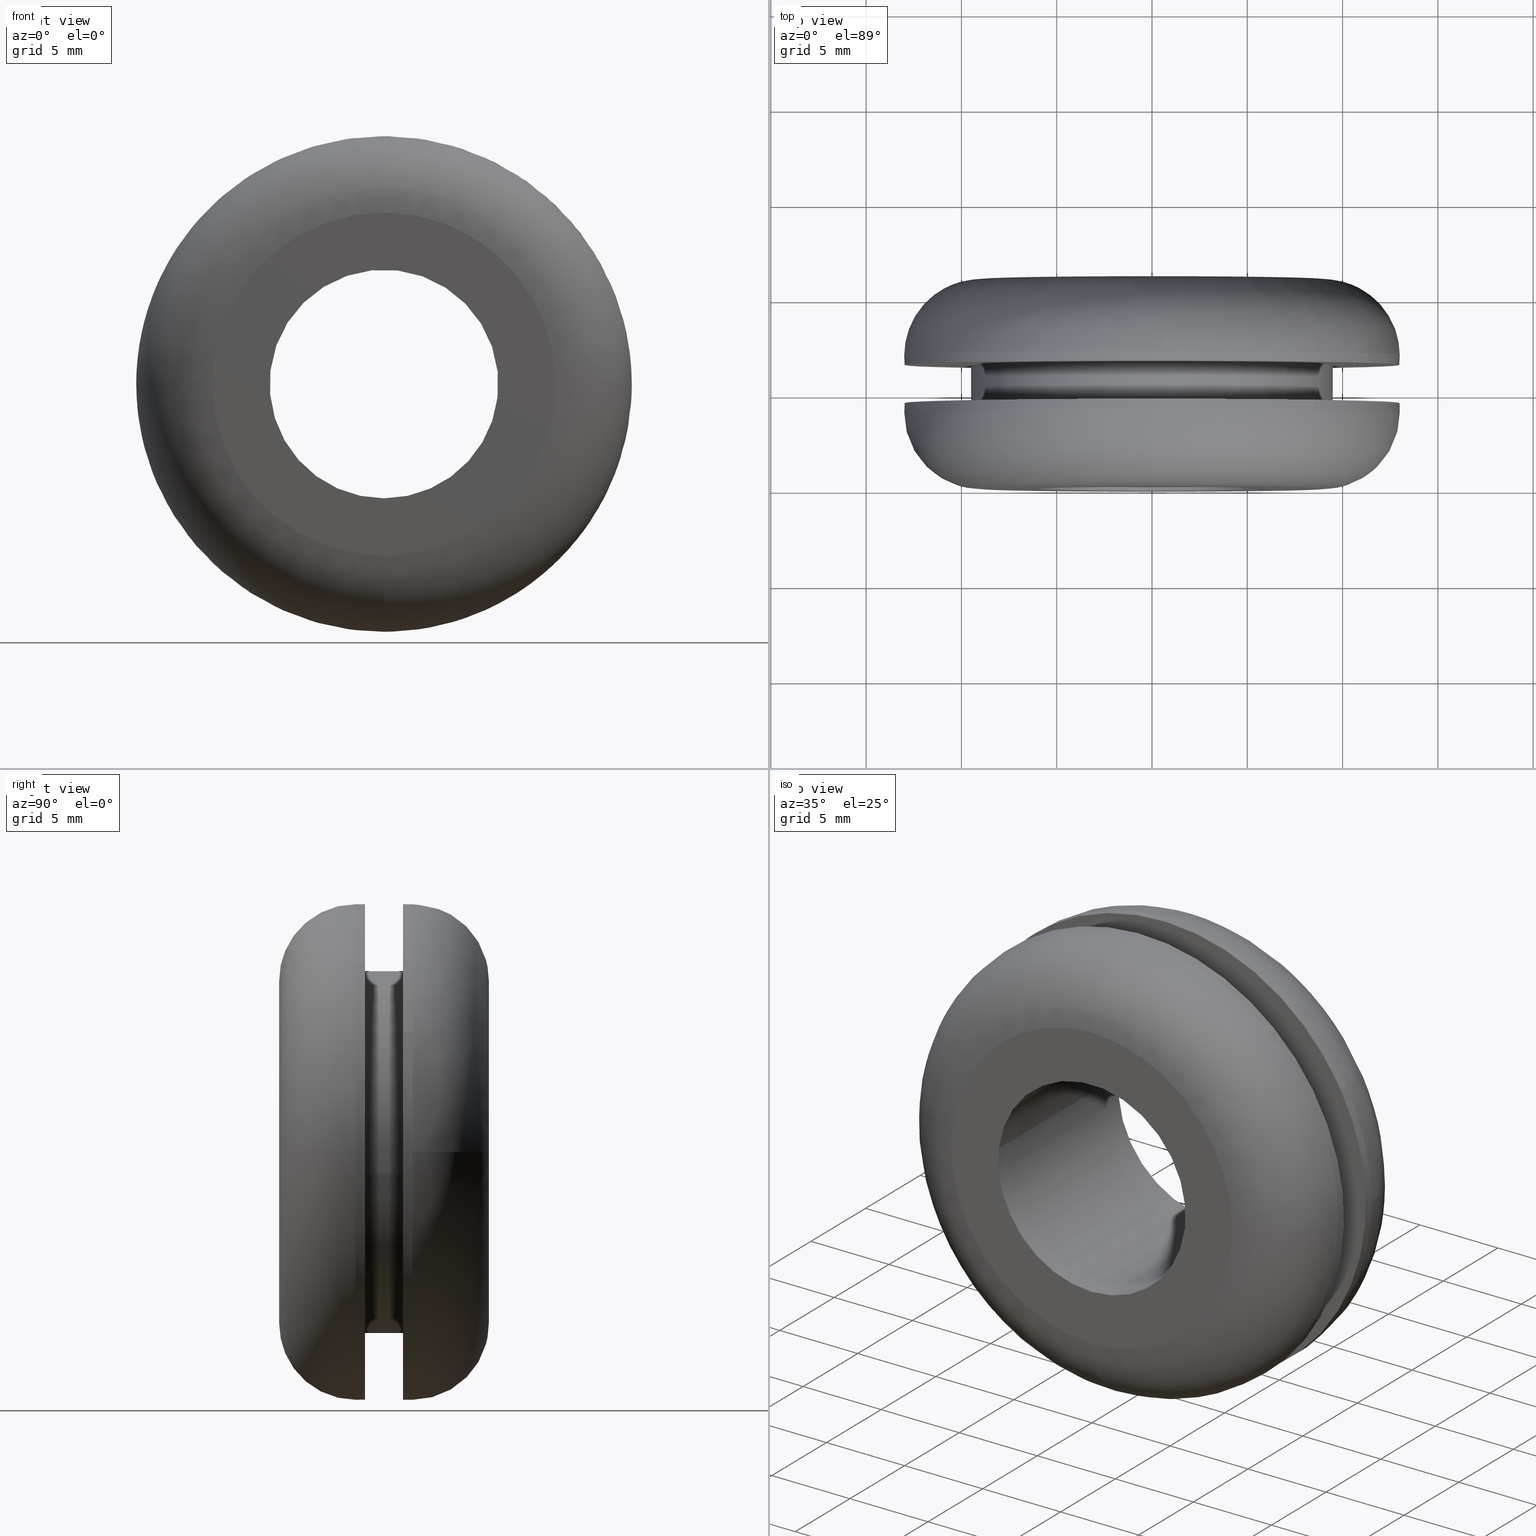
[diagram: canonical four-view strip — front | top / right | iso, engineering-drawing reading convention]
A machine part, canonical four-view strip (front | top / right | iso — engineering-drawing reading convention). The complete STEP part file that produces these views, byte-faithful:
ISO-10303-21;
HEADER;

FILE_DESCRIPTION( (''), '2;1');
FILE_NAME ('PC50.12492.TM_B_12_2_CRUL_4044.stp','2019-12-19T13:40:38',(''),(''),'spGate 15.6.1','','');

FILE_SCHEMA (('AUTOMOTIVE_DESIGN'));
ENDSEC;

DATA;
#10=(GEOMETRIC_REPRESENTATION_CONTEXT(3) GLOBAL_UNCERTAINTY_ASSIGNED_CONTEXT((#11)) GLOBAL_UNIT_ASSIGNED_CONTEXT((#12,#13,#14)) REPRESENTATION_CONTEXT('ID1','3D'));
#11=UNCERTAINTY_MEASURE_WITH_UNIT(LENGTH_MEASURE(0.01),#15,'DISTANCE_ACCURACY_VALUE','Maximum model space distance between geometric entities at asserted connectivities');
#12=(NAMED_UNIT(*) SI_UNIT($,.STERADIAN.) SOLID_ANGLE_UNIT());
#13=(CONVERSION_BASED_UNIT('DEGREE',#16) NAMED_UNIT(#17) PLANE_ANGLE_UNIT());
#14=(LENGTH_UNIT() NAMED_UNIT(*) SI_UNIT(.MILLI.,.METRE.));
#15=(LENGTH_UNIT() NAMED_UNIT(*) SI_UNIT(.MILLI.,.METRE.));
#16=PLANE_ANGLE_MEASURE_WITH_UNIT(PLANE_ANGLE_MEASURE(0.01745329252),#18);
#17=DIMENSIONAL_EXPONENTS(0.0,0.0,0.0,0.0,0.0,0.0,0.0);
#18=(NAMED_UNIT(*) PLANE_ANGLE_UNIT() SI_UNIT($,.RADIAN.));
#19=MANIFOLD_SOLID_BREP('TM_B_12_2',#31);
#20=ADVANCED_BREP_SHAPE_REPRESENTATION('',(#19),#10);
#21=APPLICATION_CONTEXT('');
#22=APPLICATION_PROTOCOL_DEFINITION('International Standard','automotive_design',1999,#21);
#23=PRODUCT_DEFINITION_CONTEXT('',#21,'design');
#24=PRODUCT_CONTEXT('',#21,'mechanical');
#25=PRODUCT('','','',(#24));
#26=PRODUCT_DEFINITION_FORMATION_WITH_SPECIFIED_SOURCE('','',#25,.NOT_KNOWN.);
#27=PRODUCT_RELATED_PRODUCT_CATEGORY('tool','tool',(#25));
#28=PRODUCT_DEFINITION('','',#26,#23);
#29=PRODUCT_DEFINITION_SHAPE('','',#28);
#30=SHAPE_DEFINITION_REPRESENTATION(#29,#20);
#31=CLOSED_SHELL('',(#40,#41,#42,#43,#44,#45,#46,#47,#48,#49,#50,#51,#52,#53,#54,#55));
#32=COLOUR_RGB('',0.00000000000E+000,0.00000000000E+000,0.00000000000E+000);
#33=FILL_AREA_STYLE_COLOUR('',#32);
#34=FILL_AREA_STYLE('',(#33));
#35=SURFACE_STYLE_FILL_AREA(#34);
#36=SURFACE_SIDE_STYLE('',(#35));
#37=SURFACE_STYLE_USAGE(.BOTH.,#36);
#38=PRESENTATION_STYLE_ASSIGNMENT((#37));
#39=STYLED_ITEM('',(#38),#19);
#40=ADVANCED_FACE('',(#57,#58),#56,.F.);
#41=ADVANCED_FACE('',(#68,#69),#67,.F.);
#42=ADVANCED_FACE('',(#79,#80),#78,.F.);
#43=ADVANCED_FACE('',(#90,#91),#89,.F.);
#44=ADVANCED_FACE('',(#101),#100,.T.);
#45=ADVANCED_FACE('',(#111),#110,.T.);
#46=ADVANCED_FACE('',(#121),#120,.T.);
#47=ADVANCED_FACE('',(#131),#130,.T.);
#48=ADVANCED_FACE('',(#141),#140,.F.);
#49=ADVANCED_FACE('',(#151),#150,.F.);
#50=ADVANCED_FACE('',(#161),#160,.T.);
#51=ADVANCED_FACE('',(#171),#170,.T.);
#52=ADVANCED_FACE('',(#181),#180,.T.);
#53=ADVANCED_FACE('',(#191),#190,.T.);
#54=ADVANCED_FACE('',(#201),#200,.T.);
#55=ADVANCED_FACE('',(#211),#210,.T.);
#56=PLANE('',#223);
#57=FACE_OUTER_BOUND('',#224,.T.);
#58=FACE_BOUND('',#225,.T.);
#59=COLOUR_RGB('',1.00000000000E+000,1.00000000000E+000,1.00000000000E+000);
#60=FILL_AREA_STYLE_COLOUR('',#59);
#61=FILL_AREA_STYLE('',(#60));
#62=SURFACE_STYLE_FILL_AREA(#61);
#63=SURFACE_SIDE_STYLE('',(#62));
#64=SURFACE_STYLE_USAGE(.BOTH.,#63);
#65=PRESENTATION_STYLE_ASSIGNMENT((#64));
#66=STYLED_ITEM('',(#65),#40);
#67=PLANE('',#229);
#68=FACE_OUTER_BOUND('',#230,.T.);
#69=FACE_BOUND('',#231,.T.);
#70=COLOUR_RGB('',1.00000000000E+000,1.00000000000E+000,1.00000000000E+000);
#71=FILL_AREA_STYLE_COLOUR('',#70);
#72=FILL_AREA_STYLE('',(#71));
#73=SURFACE_STYLE_FILL_AREA(#72);
#74=SURFACE_SIDE_STYLE('',(#73));
#75=SURFACE_STYLE_USAGE(.BOTH.,#74);
#76=PRESENTATION_STYLE_ASSIGNMENT((#75));
#77=STYLED_ITEM('',(#76),#41);
#78=PLANE('',#235);
#79=FACE_OUTER_BOUND('',#236,.T.);
#80=FACE_BOUND('',#237,.T.);
#81=COLOUR_RGB('',1.00000000000E+000,1.00000000000E+000,1.00000000000E+000);
#82=FILL_AREA_STYLE_COLOUR('',#81);
#83=FILL_AREA_STYLE('',(#82));
#84=SURFACE_STYLE_FILL_AREA(#83);
#85=SURFACE_SIDE_STYLE('',(#84));
#86=SURFACE_STYLE_USAGE(.BOTH.,#85);
#87=PRESENTATION_STYLE_ASSIGNMENT((#86));
#88=STYLED_ITEM('',(#87),#42);
#89=PLANE('',#241);
#90=FACE_OUTER_BOUND('',#242,.T.);
#91=FACE_BOUND('',#243,.T.);
#92=COLOUR_RGB('',1.00000000000E+000,1.00000000000E+000,1.00000000000E+000);
#93=FILL_AREA_STYLE_COLOUR('',#92);
#94=FILL_AREA_STYLE('',(#93));
#95=SURFACE_STYLE_FILL_AREA(#94);
#96=SURFACE_SIDE_STYLE('',(#95));
#97=SURFACE_STYLE_USAGE(.BOTH.,#96);
#98=PRESENTATION_STYLE_ASSIGNMENT((#97));
#99=STYLED_ITEM('',(#98),#43);
#100=CYLINDRICAL_SURFACE('',#247,1.30000000000E+001);
#101=FACE_OUTER_BOUND('',#248,.T.);
#102=COLOUR_RGB('',1.00000000000E+000,1.00000000000E+000,1.00000000000E+000);
#103=FILL_AREA_STYLE_COLOUR('',#102);
#104=FILL_AREA_STYLE('',(#103));
#105=SURFACE_STYLE_FILL_AREA(#104);
#106=SURFACE_SIDE_STYLE('',(#105));
#107=SURFACE_STYLE_USAGE(.BOTH.,#106);
#108=PRESENTATION_STYLE_ASSIGNMENT((#107));
#109=STYLED_ITEM('',(#108),#44);
#110=CYLINDRICAL_SURFACE('',#252,1.30000000000E+001);
#111=FACE_OUTER_BOUND('',#253,.T.);
#112=COLOUR_RGB('',1.00000000000E+000,1.00000000000E+000,1.00000000000E+000);
#113=FILL_AREA_STYLE_COLOUR('',#112);
#114=FILL_AREA_STYLE('',(#113));
#115=SURFACE_STYLE_FILL_AREA(#114);
#116=SURFACE_SIDE_STYLE('',(#115));
#117=SURFACE_STYLE_USAGE(.BOTH.,#116);
#118=PRESENTATION_STYLE_ASSIGNMENT((#117));
#119=STYLED_ITEM('',(#118),#45);
#120=CYLINDRICAL_SURFACE('',#257,9.50000000000E+000);
#121=FACE_OUTER_BOUND('',#258,.T.);
#122=COLOUR_RGB('',1.00000000000E+000,1.00000000000E+000,1.00000000000E+000);
#123=FILL_AREA_STYLE_COLOUR('',#122);
#124=FILL_AREA_STYLE('',(#123));
#125=SURFACE_STYLE_FILL_AREA(#124);
#126=SURFACE_SIDE_STYLE('',(#125));
#127=SURFACE_STYLE_USAGE(.BOTH.,#126);
#128=PRESENTATION_STYLE_ASSIGNMENT((#127));
#129=STYLED_ITEM('',(#128),#46);
#130=CYLINDRICAL_SURFACE('',#262,9.50000000000E+000);
#131=FACE_OUTER_BOUND('',#263,.T.);
#132=COLOUR_RGB('',1.00000000000E+000,1.00000000000E+000,1.00000000000E+000);
#133=FILL_AREA_STYLE_COLOUR('',#132);
#134=FILL_AREA_STYLE('',(#133));
#135=SURFACE_STYLE_FILL_AREA(#134);
#136=SURFACE_SIDE_STYLE('',(#135));
#137=SURFACE_STYLE_USAGE(.BOTH.,#136);
#138=PRESENTATION_STYLE_ASSIGNMENT((#137));
#139=STYLED_ITEM('',(#138),#47);
#140=CYLINDRICAL_SURFACE('',#267,6.00000000000E+000);
#141=FACE_OUTER_BOUND('',#268,.T.);
#142=COLOUR_RGB('',1.00000000000E+000,1.00000000000E+000,1.00000000000E+000);
#143=FILL_AREA_STYLE_COLOUR('',#142);
#144=FILL_AREA_STYLE('',(#143));
#145=SURFACE_STYLE_FILL_AREA(#144);
#146=SURFACE_SIDE_STYLE('',(#145));
#147=SURFACE_STYLE_USAGE(.BOTH.,#146);
#148=PRESENTATION_STYLE_ASSIGNMENT((#147));
#149=STYLED_ITEM('',(#148),#48);
#150=CYLINDRICAL_SURFACE('',#272,6.00000000000E+000);
#151=FACE_OUTER_BOUND('',#273,.T.);
#152=COLOUR_RGB('',1.00000000000E+000,1.00000000000E+000,1.00000000000E+000);
#153=FILL_AREA_STYLE_COLOUR('',#152);
#154=FILL_AREA_STYLE('',(#153));
#155=SURFACE_STYLE_FILL_AREA(#154);
#156=SURFACE_SIDE_STYLE('',(#155));
#157=SURFACE_STYLE_USAGE(.BOTH.,#156);
#158=PRESENTATION_STYLE_ASSIGNMENT((#157));
#159=STYLED_ITEM('',(#158),#49);
#160=CYLINDRICAL_SURFACE('',#277,1.30000000000E+001);
#161=FACE_OUTER_BOUND('',#278,.T.);
#162=COLOUR_RGB('',1.00000000000E+000,1.00000000000E+000,1.00000000000E+000);
#163=FILL_AREA_STYLE_COLOUR('',#162);
#164=FILL_AREA_STYLE('',(#163));
#165=SURFACE_STYLE_FILL_AREA(#164);
#166=SURFACE_SIDE_STYLE('',(#165));
#167=SURFACE_STYLE_USAGE(.BOTH.,#166);
#168=PRESENTATION_STYLE_ASSIGNMENT((#167));
#169=STYLED_ITEM('',(#168),#50);
#170=CYLINDRICAL_SURFACE('',#282,1.30000000000E+001);
#171=FACE_OUTER_BOUND('',#283,.T.);
#172=COLOUR_RGB('',1.00000000000E+000,1.00000000000E+000,1.00000000000E+000);
#173=FILL_AREA_STYLE_COLOUR('',#172);
#174=FILL_AREA_STYLE('',(#173));
#175=SURFACE_STYLE_FILL_AREA(#174);
#176=SURFACE_SIDE_STYLE('',(#175));
#177=SURFACE_STYLE_USAGE(.BOTH.,#176);
#178=PRESENTATION_STYLE_ASSIGNMENT((#177));
#179=STYLED_ITEM('',(#178),#51);
#180=( BOUNDED_SURFACE() B_SPLINE_SURFACE( 2,2,((#284,#285,#286,#287,#288),(#289,#290,#291,#292,#293),(#294,#295,#296,#297,#298),(#299,#300,#301,#302,#303),(#304,#305,#306,#307,#308)), .UNSPECIFIED.,.F.,.F.,.F.) B_SPLINE_SURFACE_WITH_KNOTS((3,2,3),(3,2,3),(-1.05693560015E-006,1.04719719888E+000,1.57079651646E+000),(0.00000000000E+000,1.57079632679E+000,3.14159265359E+000), .UNSPECIFIED. ) GEOMETRIC_REPRESENTATION_ITEM() RATIONAL_B_SPLINE_SURFACE(((1.00000000000E+000,7.07106781187E-001,1.00000000000E+000,7.07106781187E-001,1.00000000000E+000),(8.66025227628E-001,6.12372311135E-001,8.66025227628E-001,6.12372311135E-001,8.66025227628E-001),(1.00000000000E+000,7.07106781187E-001,1.00000000000E+000,7.07106781187E-001,1.00000000000E+000),(9.33012589549E-001,6.59739529003E-001,9.33012589549E-001,6.59739529003E-001,9.33012589549E-001),(9.33012613814E-001,6.59739546161E-001,9.33012613814E-001,6.59739546161E-001,9.33012613814E-001))) REPRESENTATION_ITEM('') SURFACE() );
#181=FACE_OUTER_BOUND('',#309,.T.);
#182=COLOUR_RGB('',1.00000000000E+000,1.00000000000E+000,1.00000000000E+000);
#183=FILL_AREA_STYLE_COLOUR('',#182);
#184=FILL_AREA_STYLE('',(#183));
#185=SURFACE_STYLE_FILL_AREA(#184);
#186=SURFACE_SIDE_STYLE('',(#185));
#187=SURFACE_STYLE_USAGE(.BOTH.,#186);
#188=PRESENTATION_STYLE_ASSIGNMENT((#187));
#189=STYLED_ITEM('',(#188),#52);
#190=( BOUNDED_SURFACE() B_SPLINE_SURFACE( 2,2,((#310,#311,#312,#313,#314),(#315,#316,#317,#318,#319),(#320,#321,#322,#323,#324),(#325,#326,#327,#328,#329),(#330,#331,#332,#333,#334)), .UNSPECIFIED.,.F.,.F.,.F.) B_SPLINE_SURFACE_WITH_KNOTS((3,2,3),(3,2,3),(-1.05693560015E-006,1.04719719888E+000,1.57079654807E+000),(3.14159265359E+000,4.71238898038E+000,6.28318530718E+000), .UNSPECIFIED. ) GEOMETRIC_REPRESENTATION_ITEM() RATIONAL_B_SPLINE_SURFACE(((1.00000000000E+000,7.07106781187E-001,1.00000000000E+000,7.07106781187E-001,1.00000000000E+000),(8.66025227628E-001,6.12372311135E-001,8.66025227628E-001,6.12372311135E-001,8.66025227628E-001),(1.00000000000E+000,7.07106781187E-001,1.00000000000E+000,7.07106781187E-001,1.00000000000E+000),(9.33012585505E-001,6.59739526143E-001,9.33012585505E-001,6.59739526143E-001,9.33012585505E-001),(9.33012613814E-001,6.59739546161E-001,9.33012613814E-001,6.59739546161E-001,9.33012613814E-001))) REPRESENTATION_ITEM('') SURFACE() );
#191=FACE_OUTER_BOUND('',#335,.T.);
#192=COLOUR_RGB('',1.00000000000E+000,1.00000000000E+000,1.00000000000E+000);
#193=FILL_AREA_STYLE_COLOUR('',#192);
#194=FILL_AREA_STYLE('',(#193));
#195=SURFACE_STYLE_FILL_AREA(#194);
#196=SURFACE_SIDE_STYLE('',(#195));
#197=SURFACE_STYLE_USAGE(.BOTH.,#196);
#198=PRESENTATION_STYLE_ASSIGNMENT((#197));
#199=STYLED_ITEM('',(#198),#53);
#200=( BOUNDED_SURFACE() B_SPLINE_SURFACE( 2,2,((#336,#337,#338,#339,#340),(#341,#342,#343,#344,#345),(#346,#347,#348,#349,#350),(#351,#352,#353,#354,#355),(#356,#357,#358,#359,#360)), .UNSPECIFIED.,.F.,.F.,.F.) B_SPLINE_SURFACE_WITH_KNOTS((3,2,3),(3,2,3),(-1.57079650103E+000,-1.04719691611E+000,1.90527398702E-006),(0.00000000000E+000,1.57079632679E+000,3.14159265359E+000), .UNSPECIFIED. ) GEOMETRIC_REPRESENTATION_ITEM() RATIONAL_B_SPLINE_SURFACE(((9.33012543119E-001,6.59739496172E-001,9.33012543119E-001,6.59739496172E-001,9.33012543119E-001),(9.33012520828E-001,6.59739480409E-001,9.33012520828E-001,6.59739480409E-001,9.33012520828E-001),(1.00000000000E+000,7.07106781187E-001,1.00000000000E+000,7.07106781187E-001,1.00000000000E+000),(8.66025086239E-001,6.12372211157E-001,8.66025086239E-001,6.12372211157E-001,8.66025086239E-001),(1.00000000000E+000,7.07106781187E-001,1.00000000000E+000,7.07106781187E-001,1.00000000000E+000))) REPRESENTATION_ITEM('') SURFACE() );
#201=FACE_OUTER_BOUND('',#361,.T.);
#202=COLOUR_RGB('',1.00000000000E+000,1.00000000000E+000,1.00000000000E+000);
#203=FILL_AREA_STYLE_COLOUR('',#202);
#204=FILL_AREA_STYLE('',(#203));
#205=SURFACE_STYLE_FILL_AREA(#204);
#206=SURFACE_SIDE_STYLE('',(#205));
#207=SURFACE_STYLE_USAGE(.BOTH.,#206);
#208=PRESENTATION_STYLE_ASSIGNMENT((#207));
#209=STYLED_ITEM('',(#208),#54);
#210=( BOUNDED_SURFACE() B_SPLINE_SURFACE( 2,2,((#362,#363,#364,#365,#366),(#367,#368,#369,#370,#371),(#372,#373,#374,#375,#376),(#377,#378,#379,#380,#381),(#382,#383,#384,#385,#386)), .UNSPECIFIED.,.F.,.F.,.F.) B_SPLINE_SURFACE_WITH_KNOTS((3,2,3),(3,2,3),(-1.57079642237E+000,-1.04719691611E+000,1.90527398702E-006),(3.14159265359E+000,4.71238898038E+000,6.28318530718E+000), .UNSPECIFIED. ) GEOMETRIC_REPRESENTATION_ITEM() RATIONAL_B_SPLINE_SURFACE(((9.33012543119E-001,6.59739496172E-001,9.33012543119E-001,6.59739496172E-001,9.33012543119E-001),(9.33012530892E-001,6.59739487526E-001,9.33012530892E-001,6.59739487526E-001,9.33012530892E-001),(1.00000000000E+000,7.07106781187E-001,1.00000000000E+000,7.07106781187E-001,1.00000000000E+000),(8.66025086239E-001,6.12372211157E-001,8.66025086239E-001,6.12372211157E-001,8.66025086239E-001),(1.00000000000E+000,7.07106781187E-001,1.00000000000E+000,7.07106781187E-001,1.00000000000E+000))) REPRESENTATION_ITEM('') SURFACE() );
#211=FACE_OUTER_BOUND('',#387,.T.);
#212=COLOUR_RGB('',1.00000000000E+000,1.00000000000E+000,1.00000000000E+000);
#213=FILL_AREA_STYLE_COLOUR('',#212);
#214=FILL_AREA_STYLE('',(#213));
#215=SURFACE_STYLE_FILL_AREA(#214);
#216=SURFACE_SIDE_STYLE('',(#215));
#217=SURFACE_STYLE_USAGE(.BOTH.,#216);
#218=PRESENTATION_STYLE_ASSIGNMENT((#217));
#219=STYLED_ITEM('',(#218),#55);
#220=CARTESIAN_POINT('',(-2.96786017414E+001,4.50000000000E+000,2.91932282384E+001));
#221=DIRECTION('',(0.00000000000E+000,-1.00000000000E+000,0.00000000000E+000));
#222=DIRECTION('',(0.00000000000E+000,0.00000000000E+000,-1.00000000000E+000));
#223=AXIS2_PLACEMENT_3D('',#220,#221,#222);
#224=EDGE_LOOP('',(#388,#389,#390));
#225=EDGE_LOOP('',(#391,#392,#393));
#226=CARTESIAN_POINT('',(-2.70199943882E+001,6.50000000000E+000,-1.69000026191E+001));
#227=DIRECTION('',(0.00000000000E+000,1.00000000000E+000,0.00000000000E+000));
#228=DIRECTION('',(0.00000000000E+000,0.00000000000E+000,1.00000000000E+000));
#229=AXIS2_PLACEMENT_3D('',#226,#227,#228);
#230=EDGE_LOOP('',(#394,#395,#396));
#231=EDGE_LOOP('',(#397,#398,#399));
#232=CARTESIAN_POINT('',(-1.87061487223E+001,1.10000000000E+001,2.07000000003E+001));
#233=DIRECTION('',(0.00000000000E+000,-1.00000000000E+000,0.00000000000E+000));
#234=DIRECTION('',(0.00000000000E+000,0.00000000000E+000,-1.00000000000E+000));
#235=AXIS2_PLACEMENT_3D('',#232,#233,#234);
#236=EDGE_LOOP('',(#400,#401,#402));
#237=EDGE_LOOP('',(#403,#404,#405));
#238=CARTESIAN_POINT('',(-1.87061487219E+001,-1.21720700000E-015,-2.07000000001E+001));
#239=DIRECTION('',(0.00000000000E+000,1.00000000000E+000,0.00000000000E+000));
#240=DIRECTION('',(8.97231466670E-017,-0.00000000000E+000,1.00000000000E+000));
#241=AXIS2_PLACEMENT_3D('',#238,#239,#240);
#242=EDGE_LOOP('',(#406,#407));
#243=EDGE_LOOP('',(#408,#409,#410));
#244=CARTESIAN_POINT('',(-1.93760684204E-017,4.51250000000E+000,1.59883389969E-015));
#245=DIRECTION('',(-7.37696834566E-017,1.00000000000E+000,6.38328218073E-017));
#246=DIRECTION('',(6.54339657003E-001,-0.00000000000E+000,7.56200775769E-001));
#247=AXIS2_PLACEMENT_3D('',#244,#245,#246);
#248=EDGE_LOOP('',(#411,#412,#413,#414,#415,#416));
#249=CARTESIAN_POINT('',(-1.93760684204E-017,4.51250000000E+000,1.59883389969E-015));
#250=DIRECTION('',(-7.37696834566E-017,1.00000000000E+000,6.38328218073E-017));
#251=DIRECTION('',(6.54339657003E-001,-0.00000000000E+000,7.56200775769E-001));
#252=AXIS2_PLACEMENT_3D('',#249,#250,#251);
#253=EDGE_LOOP('',(#417,#418,#419,#420,#421,#422,#423));
#254=CARTESIAN_POINT('',(3.47325598314E-016,6.55000000000E+000,3.85514697704E-016));
#255=DIRECTION('',(4.98965924072E-017,1.00000000000E+000,4.19774752109E-016));
#256=DIRECTION('',(-9.93009526364E-001,-2.46519032882E-032,1.18034234657E-001));
#257=AXIS2_PLACEMENT_3D('',#254,#255,#256);
#258=EDGE_LOOP('',(#424,#425,#426,#427));
#259=CARTESIAN_POINT('',(3.47325598314E-016,6.55000000000E+000,3.85514697704E-016));
#260=DIRECTION('',(4.98965924072E-017,1.00000000000E+000,4.19774752109E-016));
#261=DIRECTION('',(-9.93009526364E-001,-2.46519032882E-032,1.18034234657E-001));
#262=AXIS2_PLACEMENT_3D('',#259,#260,#261);
#263=EDGE_LOOP('',(#428,#429,#430,#431,#432,#433));
#264=CARTESIAN_POINT('',(1.74235465681E-014,1.12750000000E+001,1.56806256335E-013));
#265=DIRECTION('',(2.95312682859E-015,1.00000000000E+000,2.73525944060E-014));
#266=DIRECTION('',(-9.93009526364E-001,-2.96059473234E-016,1.18034234657E-001));
#267=AXIS2_PLACEMENT_3D('',#264,#265,#266);
#268=EDGE_LOOP('',(#434,#435,#436,#437));
#269=CARTESIAN_POINT('',(1.74235465681E-014,1.12750000000E+001,1.56806256335E-013));
#270=DIRECTION('',(2.95312682859E-015,1.00000000000E+000,2.73525944060E-014));
#271=DIRECTION('',(-9.93009526364E-001,-2.96059473234E-016,1.18034234657E-001));
#272=AXIS2_PLACEMENT_3D('',#269,#270,#271);
#273=EDGE_LOOP('',(#438,#439,#440,#441,#442,#443));
#274=CARTESIAN_POINT('',(8.11210072586E-016,7.01250000000E+000,-4.19063727877E-015));
#275=DIRECTION('',(-2.93038323339E-016,1.00000000000E+000,9.52784560557E-016));
#276=DIRECTION('',(-8.74946427443E-001,2.04964250700E-016,-4.84219732254E-001));
#277=AXIS2_PLACEMENT_3D('',#274,#275,#276);
#278=EDGE_LOOP('',(#444,#445,#446,#447,#448,#449,#450));
#279=CARTESIAN_POINT('',(8.11210072586E-016,7.01250000000E+000,-4.19063727877E-015));
#280=DIRECTION('',(-2.93038323339E-016,1.00000000000E+000,9.52784560557E-016));
#281=DIRECTION('',(-8.74946427443E-001,2.04964250700E-016,-4.84219732254E-001));
#282=AXIS2_PLACEMENT_3D('',#279,#280,#281);
#283=EDGE_LOOP('',(#451,#452,#453,#454,#455,#456,#457,#458));
#284=CARTESIAN_POINT('',(1.61239993919E-014,4.00000422774E+000,-1.30000000000E+001));
#285=CARTESIAN_POINT('',(-1.30000000000E+001,4.00000422774E+000,-1.30000000000E+001));
#286=CARTESIAN_POINT('',(-1.30000000000E+001,4.00000422774E+000,-1.14548653717E-014));
#287=CARTESIAN_POINT('',(-1.30000000000E+001,4.00000422774E+000,1.30000000000E+001));
#288=CARTESIAN_POINT('',(-1.85150641342E-014,4.00000422774E+000,1.30000000000E+001));
#289=CARTESIAN_POINT('',(1.57192578660E-014,1.69060127199E+000,-1.30000024409E+001));
#290=CARTESIAN_POINT('',(-1.30000024409E+001,1.69060127199E+000,-1.30000024409E+001));
#291=CARTESIAN_POINT('',(-1.30000024409E+001,1.69060127199E+000,-1.10939148781E-014));
#292=CARTESIAN_POINT('',(-1.30000024409E+001,1.69060127199E+000,1.30000024409E+001));
#293=CARTESIAN_POINT('',(-1.89198121640E-014,1.69060127199E+000,1.30000024409E+001));
#294=CARTESIAN_POINT('',(1.28523403794E-014,5.35899089486E-001,-1.10000012204E+001));
#295=CARTESIAN_POINT('',(-1.10000012204E+001,5.35899089486E-001,-1.10000012204E+001));
#296=CARTESIAN_POINT('',(-1.10000012204E+001,5.35899089486E-001,-8.24889292111E-015));
#297=CARTESIAN_POINT('',(-1.10000012204E+001,5.35899089486E-001,1.10000012204E+001));
#298=CARTESIAN_POINT('',(-1.64576397023E-014,5.35899089486E-001,1.10000012204E+001));
#299=CARTESIAN_POINT('',(1.15217989719E-014,-2.08055207485E-007,-1.00717971646E+001));
#300=CARTESIAN_POINT('',(-1.00717971646E+001,-2.08055205811E-007,-1.00717971646E+001));
#301=CARTESIAN_POINT('',(-1.00717971646E+001,-2.08055204213E-007,-6.92851326707E-015));
#302=CARTESIAN_POINT('',(-1.00717971646E+001,-2.08055202613E-007,1.00717971646E+001));
#303=CARTESIAN_POINT('',(-1.53149411670E-014,-2.08055204392E-007,1.00717971646E+001));
#304=CARTESIAN_POINT('',(1.00938729712E-014,7.57503318376E-014,-8.99999922353E+000));
#305=CARTESIAN_POINT('',(-8.99999922353E+000,7.73198818594E-014,-8.99999922353E+000));
#306=CARTESIAN_POINT('',(-8.99999922353E+000,7.86954172803E-014,-5.50058726239E-015));
#307=CARTESIAN_POINT('',(-8.99999922353E+000,8.01806760322E-014,8.99999922353E+000));
#308=CARTESIAN_POINT('',(-1.38870150934E-014,7.85466756132E-014,8.99999922353E+000));
#309=EDGE_LOOP('',(#459,#460,#461,#462,#463,#464));
#310=CARTESIAN_POINT('',(-1.85150641342E-014,4.00000422774E+000,1.30000000000E+001));
#311=CARTESIAN_POINT('',(1.30000000000E+001,4.00000422774E+000,1.30000000000E+001));
#312=CARTESIAN_POINT('',(1.30000000000E+001,4.00000422774E+000,2.31841981545E-014));
#313=CARTESIAN_POINT('',(1.30000000000E+001,4.00000422774E+000,-1.30000000000E+001));
#314=CARTESIAN_POINT('',(1.61239993919E-014,4.00000422774E+000,-1.30000000000E+001));
#315=CARTESIAN_POINT('',(-1.89198121640E-014,1.69060127199E+000,1.30000024409E+001));
#316=CARTESIAN_POINT('',(1.30000024409E+001,1.69060127199E+000,1.30000024409E+001));
#317=CARTESIAN_POINT('',(1.30000024409E+001,1.69060127199E+000,2.35451551519E-014));
#318=CARTESIAN_POINT('',(1.30000024409E+001,1.69060127199E+000,-1.30000024409E+001));
#319=CARTESIAN_POINT('',(1.57192578660E-014,1.69060127199E+000,-1.30000024409E+001));
#320=CARTESIAN_POINT('',(-1.64576397023E-014,5.35899089486E-001,1.10000012204E+001));
#321=CARTESIAN_POINT('',(1.10000012204E+001,5.35899089486E-001,1.10000012204E+001));
#322=CARTESIAN_POINT('',(1.10000012204E+001,5.35899089486E-001,2.10610871606E-014));
#323=CARTESIAN_POINT('',(1.10000012204E+001,5.35899089486E-001,-1.10000012204E+001));
#324=CARTESIAN_POINT('',(1.28523403794E-014,5.35899089486E-001,-1.10000012204E+001));
#325=CARTESIAN_POINT('',(-1.53149410931E-014,-2.42737074491E-007,1.00717971045E+001));
#326=CARTESIAN_POINT('',(1.00717971045E+001,-2.42737076213E-007,1.00717971045E+001));
#327=CARTESIAN_POINT('',(1.00717971045E+001,-2.42737077763E-007,1.99082267973E-014));
#328=CARTESIAN_POINT('',(1.00717971045E+001,-2.42737079411E-007,-1.00717971045E+001));
#329=CARTESIAN_POINT('',(1.15217988858E-014,-2.42737077585E-007,-1.00717971045E+001));
#330=CARTESIAN_POINT('',(-1.38870149209E-014,1.05766382324E-013,8.99999909409E+000));
#331=CARTESIAN_POINT('',(8.99999909409E+000,1.04245095061E-013,8.99999909409E+000));
#332=CARTESIAN_POINT('',(8.99999909409E+000,1.02821296881E-013,1.84803006297E-014));
#333=CARTESIAN_POINT('',(8.99999909409E+000,1.01384300888E-013,-8.99999909409E+000));
#334=CARTESIAN_POINT('',(1.00938727987E-014,1.02970038576E-013,-8.99999909409E+000));
#335=EDGE_LOOP('',(#465,#466,#467,#468,#469,#470));
#336=CARTESIAN_POINT('',(-8.99999928668E+000,1.10000000000E+001,3.76560804156E-014));
#337=CARTESIAN_POINT('',(-8.99999928668E+000,1.10000000000E+001,8.99999928668E+000));
#338=CARTESIAN_POINT('',(-3.04156276560E-012,1.10000000000E+001,8.99999928668E+000));
#339=CARTESIAN_POINT('',(8.99999928668E+000,1.10000000000E+001,8.99999928668E+000));
#340=CARTESIAN_POINT('',(8.99999928668E+000,1.10000000000E+001,3.54517891534E-014));
#341=CARTESIAN_POINT('',(-1.00717978001E+001,1.10000001911E+001,3.77873278083E-014));
#342=CARTESIAN_POINT('',(-1.00717978001E+001,1.10000001911E+001,1.00717978001E+001));
#343=CARTESIAN_POINT('',(-3.04143137330E-012,1.10000001911E+001,1.00717978001E+001));
#344=CARTESIAN_POINT('',(1.00717978000E+001,1.10000001911E+001,1.00717978001E+001));
#345=CARTESIAN_POINT('',(1.00717978000E+001,1.10000001911E+001,3.53205302922E-014));
#346=CARTESIAN_POINT('',(-1.10000022000E+001,1.04641003450E+001,5.39786426682E-014));
#347=CARTESIAN_POINT('',(-1.10000022000E+001,1.04641003450E+001,1.10000022000E+001));
#348=CARTESIAN_POINT('',(-3.43153864153E-012,1.04641003450E+001,1.10000022000E+001));
#349=CARTESIAN_POINT('',(1.10000022000E+001,1.04641003450E+001,1.10000022000E+001));
#350=CARTESIAN_POINT('',(1.10000022000E+001,1.04641003450E+001,5.12845081510E-014));
#351=CARTESIAN_POINT('',(-1.30000044001E+001,9.30939684283E+000,8.88660719263E-014));
#352=CARTESIAN_POINT('',(-1.30000044001E+001,9.30939684283E+000,1.30000044000E+001));
#353=CARTESIAN_POINT('',(-4.27210284780E-012,9.30939684282E+000,1.30000044000E+001));
#354=CARTESIAN_POINT('',(1.30000044000E+001,9.30939684281E+000,1.30000044000E+001));
#355=CARTESIAN_POINT('',(1.30000044000E+001,9.30939684281E+000,8.56820943287E-014));
#356=CARTESIAN_POINT('',(-1.30000000000E+001,6.99999237892E+000,1.58151010609E-013));
#357=CARTESIAN_POINT('',(-1.30000000000E+001,6.99999237892E+000,1.30000000000E+001));
#358=CARTESIAN_POINT('',(-5.95371925415E-012,6.99999237891E+000,1.30000000000E+001));
#359=CARTESIAN_POINT('',(1.30000000000E+001,6.99999237890E+000,1.30000000000E+001));
#360=CARTESIAN_POINT('',(1.30000000000E+001,6.99999237890E+000,1.54967034089E-013));
#361=EDGE_LOOP('',(#471,#472,#473,#474,#475,#476,#477));
#362=CARTESIAN_POINT('',(8.99999960873E+000,1.10000000000E+001,3.54517891140E-014));
#363=CARTESIAN_POINT('',(8.99999960873E+000,1.10000000000E+001,-8.99999960874E+000));
#364=CARTESIAN_POINT('',(-3.04376705690E-012,1.10000000000E+001,-8.99999960874E+000));
#365=CARTESIAN_POINT('',(-8.99999960874E+000,1.10000000000E+001,-8.99999960874E+000));
#366=CARTESIAN_POINT('',(-8.99999960874E+000,1.10000000000E+001,3.76560804550E-014));
#367=CARTESIAN_POINT('',(1.00717979495E+001,1.10000001048E+001,3.53205328628E-014));
#368=CARTESIAN_POINT('',(1.00717979495E+001,1.10000001048E+001,-1.00717979495E+001));
#369=CARTESIAN_POINT('',(-3.04389823367E-012,1.10000001048E+001,-1.00717979495E+001));
#370=CARTESIAN_POINT('',(-1.00717979495E+001,1.10000001049E+001,-1.00717979495E+001));
#371=CARTESIAN_POINT('',(-1.00717979495E+001,1.10000001049E+001,3.77873304155E-014));
#372=CARTESIAN_POINT('',(1.10000022000E+001,1.04641003450E+001,5.12845081510E-014));
#373=CARTESIAN_POINT('',(1.10000022000E+001,1.04641003450E+001,-1.10000022000E+001));
#374=CARTESIAN_POINT('',(-3.43423277605E-012,1.04641003450E+001,-1.10000022000E+001));
#375=CARTESIAN_POINT('',(-1.10000022000E+001,1.04641003450E+001,-1.10000022000E+001));
#376=CARTESIAN_POINT('',(-1.10000022000E+001,1.04641003450E+001,5.39786426682E-014));
#377=CARTESIAN_POINT('',(1.30000044000E+001,9.30939684281E+000,8.56820943287E-014));
#378=CARTESIAN_POINT('',(1.30000044000E+001,9.30939684281E+000,-1.30000044000E+001));
#379=CARTESIAN_POINT('',(-4.27528682540E-012,9.30939684282E+000,-1.30000044000E+001));
#380=CARTESIAN_POINT('',(-1.30000044001E+001,9.30939684283E+000,-1.30000044000E+001));
#381=CARTESIAN_POINT('',(-1.30000044001E+001,9.30939684283E+000,8.88660719263E-014));
#382=CARTESIAN_POINT('',(1.30000000000E+001,6.99999237890E+000,1.54967034089E-013));
#383=CARTESIAN_POINT('',(1.30000000000E+001,6.99999237890E+000,-1.30000000000E+001));
#384=CARTESIAN_POINT('',(-5.95690323067E-012,6.99999237891E+000,-1.30000000000E+001));
#385=CARTESIAN_POINT('',(-1.30000000000E+001,6.99999237892E+000,-1.30000000000E+001));
#386=CARTESIAN_POINT('',(-1.30000000000E+001,6.99999237892E+000,1.58151010609E-013));
#387=EDGE_LOOP('',(#478,#479,#480,#481,#482,#483,#484,#485));
#388=ORIENTED_EDGE('',*,*,#486,.F.);
#389=ORIENTED_EDGE('',*,*,#487,.F.);
#390=ORIENTED_EDGE('',*,*,#488,.F.);
#391=ORIENTED_EDGE('',*,*,#489,.T.);
#392=ORIENTED_EDGE('',*,*,#490,.T.);
#393=ORIENTED_EDGE('',*,*,#491,.T.);
#394=ORIENTED_EDGE('',*,*,#492,.T.);
#395=ORIENTED_EDGE('',*,*,#493,.T.);
#396=ORIENTED_EDGE('',*,*,#494,.T.);
#397=ORIENTED_EDGE('',*,*,#495,.F.);
#398=ORIENTED_EDGE('',*,*,#496,.F.);
#399=ORIENTED_EDGE('',*,*,#497,.F.);
#400=ORIENTED_EDGE('',*,*,#498,.F.);
#401=ORIENTED_EDGE('',*,*,#499,.F.);
#402=ORIENTED_EDGE('',*,*,#500,.F.);
#403=ORIENTED_EDGE('',*,*,#501,.T.);
#404=ORIENTED_EDGE('',*,*,#502,.T.);
#405=ORIENTED_EDGE('',*,*,#503,.T.);
#406=ORIENTED_EDGE('',*,*,#504,.T.);
#407=ORIENTED_EDGE('',*,*,#505,.T.);
#408=ORIENTED_EDGE('',*,*,#506,.F.);
#409=ORIENTED_EDGE('',*,*,#507,.F.);
#410=ORIENTED_EDGE('',*,*,#508,.F.);
#411=ORIENTED_EDGE('',*,*,#487,.T.);
#412=ORIENTED_EDGE('',*,*,#509,.F.);
#413=ORIENTED_EDGE('',*,*,#510,.F.);
#414=ORIENTED_EDGE('',*,*,#511,.F.);
#415=ORIENTED_EDGE('',*,*,#512,.F.);
#416=ORIENTED_EDGE('',*,*,#513,.T.);
#417=ORIENTED_EDGE('',*,*,#514,.F.);
#418=ORIENTED_EDGE('',*,*,#515,.F.);
#419=ORIENTED_EDGE('',*,*,#516,.F.);
#420=ORIENTED_EDGE('',*,*,#509,.T.);
#421=ORIENTED_EDGE('',*,*,#486,.T.);
#422=ORIENTED_EDGE('',*,*,#488,.T.);
#423=ORIENTED_EDGE('',*,*,#513,.F.);
#424=ORIENTED_EDGE('',*,*,#496,.T.);
#425=ORIENTED_EDGE('',*,*,#517,.F.);
#426=ORIENTED_EDGE('',*,*,#490,.F.);
#427=ORIENTED_EDGE('',*,*,#518,.T.);
#428=ORIENTED_EDGE('',*,*,#489,.F.);
#429=ORIENTED_EDGE('',*,*,#491,.F.);
#430=ORIENTED_EDGE('',*,*,#517,.T.);
#431=ORIENTED_EDGE('',*,*,#495,.T.);
#432=ORIENTED_EDGE('',*,*,#497,.T.);
#433=ORIENTED_EDGE('',*,*,#518,.F.);
#434=ORIENTED_EDGE('',*,*,#507,.T.);
#435=ORIENTED_EDGE('',*,*,#519,.T.);
#436=ORIENTED_EDGE('',*,*,#502,.F.);
#437=ORIENTED_EDGE('',*,*,#520,.F.);
#438=ORIENTED_EDGE('',*,*,#501,.F.);
#439=ORIENTED_EDGE('',*,*,#503,.F.);
#440=ORIENTED_EDGE('',*,*,#519,.F.);
#441=ORIENTED_EDGE('',*,*,#506,.T.);
#442=ORIENTED_EDGE('',*,*,#508,.T.);
#443=ORIENTED_EDGE('',*,*,#520,.T.);
#444=ORIENTED_EDGE('',*,*,#521,.T.);
#445=ORIENTED_EDGE('',*,*,#522,.T.);
#446=ORIENTED_EDGE('',*,*,#523,.T.);
#447=ORIENTED_EDGE('',*,*,#524,.T.);
#448=ORIENTED_EDGE('',*,*,#525,.F.);
#449=ORIENTED_EDGE('',*,*,#493,.F.);
#450=ORIENTED_EDGE('',*,*,#526,.T.);
#451=ORIENTED_EDGE('',*,*,#492,.F.);
#452=ORIENTED_EDGE('',*,*,#494,.F.);
#453=ORIENTED_EDGE('',*,*,#525,.T.);
#454=ORIENTED_EDGE('',*,*,#527,.T.);
#455=ORIENTED_EDGE('',*,*,#528,.T.);
#456=ORIENTED_EDGE('',*,*,#529,.T.);
#457=ORIENTED_EDGE('',*,*,#530,.T.);
#458=ORIENTED_EDGE('',*,*,#526,.F.);
#459=ORIENTED_EDGE('',*,*,#515,.T.);
#460=ORIENTED_EDGE('',*,*,#514,.T.);
#461=ORIENTED_EDGE('',*,*,#512,.T.);
#462=ORIENTED_EDGE('',*,*,#531,.T.);
#463=ORIENTED_EDGE('',*,*,#504,.F.);
#464=ORIENTED_EDGE('',*,*,#532,.F.);
#465=ORIENTED_EDGE('',*,*,#505,.F.);
#466=ORIENTED_EDGE('',*,*,#531,.F.);
#467=ORIENTED_EDGE('',*,*,#511,.T.);
#468=ORIENTED_EDGE('',*,*,#510,.T.);
#469=ORIENTED_EDGE('',*,*,#516,.T.);
#470=ORIENTED_EDGE('',*,*,#532,.T.);
#471=ORIENTED_EDGE('',*,*,#499,.T.);
#472=ORIENTED_EDGE('',*,*,#533,.T.);
#473=ORIENTED_EDGE('',*,*,#523,.F.);
#474=ORIENTED_EDGE('',*,*,#522,.F.);
#475=ORIENTED_EDGE('',*,*,#521,.F.);
#476=ORIENTED_EDGE('',*,*,#530,.F.);
#477=ORIENTED_EDGE('',*,*,#534,.F.);
#478=ORIENTED_EDGE('',*,*,#529,.F.);
#479=ORIENTED_EDGE('',*,*,#528,.F.);
#480=ORIENTED_EDGE('',*,*,#527,.F.);
#481=ORIENTED_EDGE('',*,*,#524,.F.);
#482=ORIENTED_EDGE('',*,*,#533,.F.);
#483=ORIENTED_EDGE('',*,*,#498,.T.);
#484=ORIENTED_EDGE('',*,*,#500,.T.);
#485=ORIENTED_EDGE('',*,*,#534,.T.);
#486=EDGE_CURVE('',#535,#536,#537,.T.);
#487=EDGE_CURVE('',#543,#535,#544,.T.);
#488=EDGE_CURVE('',#536,#543,#550,.T.);
#489=EDGE_CURVE('',#556,#557,#558,.T.);
#490=EDGE_CURVE('',#557,#564,#565,.T.);
#491=EDGE_CURVE('',#564,#556,#571,.T.);
#492=EDGE_CURVE('',#577,#578,#579,.T.);
#493=EDGE_CURVE('',#578,#585,#586,.T.);
#494=EDGE_CURVE('',#585,#577,#592,.T.);
#495=EDGE_CURVE('',#598,#599,#600,.T.);
#496=EDGE_CURVE('',#606,#598,#607,.T.);
#497=EDGE_CURVE('',#599,#606,#613,.T.);
#498=EDGE_CURVE('',#619,#620,#621,.T.);
#499=EDGE_CURVE('',#627,#619,#628,.T.);
#500=EDGE_CURVE('',#620,#627,#634,.T.);
#501=EDGE_CURVE('',#640,#641,#642,.T.);
#502=EDGE_CURVE('',#641,#648,#649,.T.);
#503=EDGE_CURVE('',#648,#640,#655,.T.);
#504=EDGE_CURVE('',#661,#662,#663,.T.);
#505=EDGE_CURVE('',#662,#661,#669,.T.);
#506=EDGE_CURVE('',#675,#676,#677,.T.);
#507=EDGE_CURVE('',#683,#675,#684,.T.);
#508=EDGE_CURVE('',#676,#683,#690,.T.);
#509=EDGE_CURVE('',#696,#535,#697,.T.);
#510=EDGE_CURVE('',#703,#696,#704,.T.);
#511=EDGE_CURVE('',#710,#703,#711,.T.);
#512=EDGE_CURVE('',#717,#710,#718,.T.);
#513=EDGE_CURVE('',#717,#543,#724,.T.);
#514=EDGE_CURVE('',#730,#717,#731,.T.);
#515=EDGE_CURVE('',#737,#730,#738,.T.);
#516=EDGE_CURVE('',#696,#737,#744,.T.);
#517=EDGE_CURVE('',#564,#598,#750,.T.);
#518=EDGE_CURVE('',#557,#606,#756,.T.);
#519=EDGE_CURVE('',#675,#648,#762,.T.);
#520=EDGE_CURVE('',#683,#641,#768,.T.);
#521=EDGE_CURVE('',#774,#775,#776,.T.);
#522=EDGE_CURVE('',#775,#782,#783,.T.);
#523=EDGE_CURVE('',#782,#789,#790,.T.);
#524=EDGE_CURVE('',#789,#796,#797,.T.);
#525=EDGE_CURVE('',#585,#796,#803,.T.);
#526=EDGE_CURVE('',#578,#774,#809,.T.);
#527=EDGE_CURVE('',#796,#815,#816,.T.);
#528=EDGE_CURVE('',#815,#822,#823,.T.);
#529=EDGE_CURVE('',#822,#829,#830,.T.);
#530=EDGE_CURVE('',#829,#774,#836,.T.);
#531=EDGE_CURVE('',#710,#662,#842,.T.);
#532=EDGE_CURVE('',#737,#661,#848,.T.);
#533=EDGE_CURVE('',#619,#789,#854,.T.);
#534=EDGE_CURVE('',#627,#829,#860,.T.);
#535=VERTEX_POINT('',#866);
#536=VERTEX_POINT('',#867);
#537=CIRCLE('',#871,1.30000007312E+001);
#538=COLOUR_RGB('',1.00000000000E+000,1.00000000000E+000,1.00000000000E+000);
#539=DRAUGHTING_PRE_DEFINED_CURVE_FONT('continuous');
#540=CURVE_STYLE( '',#539, POSITIVE_LENGTH_MEASURE(1.00000000000E-006),#538);
#541=PRESENTATION_STYLE_ASSIGNMENT((#540));
#542=STYLED_ITEM('',(#541),#486);
#543=VERTEX_POINT('',#872);
#544=CIRCLE('',#876,1.30000007312E+001);
#545=COLOUR_RGB('',1.00000000000E+000,1.00000000000E+000,1.00000000000E+000);
#546=DRAUGHTING_PRE_DEFINED_CURVE_FONT('continuous');
#547=CURVE_STYLE( '',#546, POSITIVE_LENGTH_MEASURE(1.00000000000E-006),#545);
#548=PRESENTATION_STYLE_ASSIGNMENT((#547));
#549=STYLED_ITEM('',(#548),#487);
#550=CIRCLE('',#880,1.30000007312E+001);
#551=COLOUR_RGB('',1.00000000000E+000,1.00000000000E+000,1.00000000000E+000);
#552=DRAUGHTING_PRE_DEFINED_CURVE_FONT('continuous');
#553=CURVE_STYLE( '',#552, POSITIVE_LENGTH_MEASURE(1.00000000000E-006),#551);
#554=PRESENTATION_STYLE_ASSIGNMENT((#553));
#555=STYLED_ITEM('',(#554),#488);
#556=VERTEX_POINT('',#881);
#557=VERTEX_POINT('',#882);
#558=CIRCLE('',#886,9.50000000000E+000);
#559=COLOUR_RGB('',1.00000000000E+000,1.00000000000E+000,1.00000000000E+000);
#560=DRAUGHTING_PRE_DEFINED_CURVE_FONT('continuous');
#561=CURVE_STYLE( '',#560, POSITIVE_LENGTH_MEASURE(1.00000000000E-006),#559);
#562=PRESENTATION_STYLE_ASSIGNMENT((#561));
#563=STYLED_ITEM('',(#562),#489);
#564=VERTEX_POINT('',#887);
#565=CIRCLE('',#891,9.50000000000E+000);
#566=COLOUR_RGB('',1.00000000000E+000,1.00000000000E+000,1.00000000000E+000);
#567=DRAUGHTING_PRE_DEFINED_CURVE_FONT('continuous');
#568=CURVE_STYLE( '',#567, POSITIVE_LENGTH_MEASURE(1.00000000000E-006),#566);
#569=PRESENTATION_STYLE_ASSIGNMENT((#568));
#570=STYLED_ITEM('',(#569),#490);
#571=CIRCLE('',#895,9.50000000000E+000);
#572=COLOUR_RGB('',1.00000000000E+000,1.00000000000E+000,1.00000000000E+000);
#573=DRAUGHTING_PRE_DEFINED_CURVE_FONT('continuous');
#574=CURVE_STYLE( '',#573, POSITIVE_LENGTH_MEASURE(1.00000000000E-006),#572);
#575=PRESENTATION_STYLE_ASSIGNMENT((#574));
#576=STYLED_ITEM('',(#575),#491);
#577=VERTEX_POINT('',#896);
#578=VERTEX_POINT('',#897);
#579=CIRCLE('',#901,1.30000008613E+001);
#580=COLOUR_RGB('',1.00000000000E+000,1.00000000000E+000,1.00000000000E+000);
#581=DRAUGHTING_PRE_DEFINED_CURVE_FONT('continuous');
#582=CURVE_STYLE( '',#581, POSITIVE_LENGTH_MEASURE(1.00000000000E-006),#580);
#583=PRESENTATION_STYLE_ASSIGNMENT((#582));
#584=STYLED_ITEM('',(#583),#492);
#585=VERTEX_POINT('',#902);
#586=CIRCLE('',#906,1.30000008613E+001);
#587=COLOUR_RGB('',1.00000000000E+000,1.00000000000E+000,1.00000000000E+000);
#588=DRAUGHTING_PRE_DEFINED_CURVE_FONT('continuous');
#589=CURVE_STYLE( '',#588, POSITIVE_LENGTH_MEASURE(1.00000000000E-006),#587);
#590=PRESENTATION_STYLE_ASSIGNMENT((#589));
#591=STYLED_ITEM('',(#590),#493);
#592=CIRCLE('',#910,1.30000008613E+001);
#593=COLOUR_RGB('',1.00000000000E+000,1.00000000000E+000,1.00000000000E+000);
#594=DRAUGHTING_PRE_DEFINED_CURVE_FONT('continuous');
#595=CURVE_STYLE( '',#594, POSITIVE_LENGTH_MEASURE(1.00000000000E-006),#593);
#596=PRESENTATION_STYLE_ASSIGNMENT((#595));
#597=STYLED_ITEM('',(#596),#494);
#598=VERTEX_POINT('',#911);
#599=VERTEX_POINT('',#912);
#600=CIRCLE('',#916,9.50000000000E+000);
#601=COLOUR_RGB('',1.00000000000E+000,1.00000000000E+000,1.00000000000E+000);
#602=DRAUGHTING_PRE_DEFINED_CURVE_FONT('continuous');
#603=CURVE_STYLE( '',#602, POSITIVE_LENGTH_MEASURE(1.00000000000E-006),#601);
#604=PRESENTATION_STYLE_ASSIGNMENT((#603));
#605=STYLED_ITEM('',(#604),#495);
#606=VERTEX_POINT('',#917);
#607=CIRCLE('',#921,9.50000000000E+000);
#608=COLOUR_RGB('',1.00000000000E+000,1.00000000000E+000,1.00000000000E+000);
#609=DRAUGHTING_PRE_DEFINED_CURVE_FONT('continuous');
#610=CURVE_STYLE( '',#609, POSITIVE_LENGTH_MEASURE(1.00000000000E-006),#608);
#611=PRESENTATION_STYLE_ASSIGNMENT((#610));
#612=STYLED_ITEM('',(#611),#496);
#613=CIRCLE('',#925,9.50000000000E+000);
#614=COLOUR_RGB('',1.00000000000E+000,1.00000000000E+000,1.00000000000E+000);
#615=DRAUGHTING_PRE_DEFINED_CURVE_FONT('continuous');
#616=CURVE_STYLE( '',#615, POSITIVE_LENGTH_MEASURE(1.00000000000E-006),#614);
#617=PRESENTATION_STYLE_ASSIGNMENT((#616));
#618=STYLED_ITEM('',(#617),#497);
#619=VERTEX_POINT('',#926);
#620=VERTEX_POINT('',#927);
#621=CIRCLE('',#931,9.00000000025E+000);
#622=COLOUR_RGB('',1.00000000000E+000,1.00000000000E+000,1.00000000000E+000);
#623=DRAUGHTING_PRE_DEFINED_CURVE_FONT('continuous');
#624=CURVE_STYLE( '',#623, POSITIVE_LENGTH_MEASURE(1.00000000000E-006),#622);
#625=PRESENTATION_STYLE_ASSIGNMENT((#624));
#626=STYLED_ITEM('',(#625),#498);
#627=VERTEX_POINT('',#932);
#628=CIRCLE('',#936,9.00000000025E+000);
#629=COLOUR_RGB('',1.00000000000E+000,1.00000000000E+000,1.00000000000E+000);
#630=DRAUGHTING_PRE_DEFINED_CURVE_FONT('continuous');
#631=CURVE_STYLE( '',#630, POSITIVE_LENGTH_MEASURE(1.00000000000E-006),#629);
#632=PRESENTATION_STYLE_ASSIGNMENT((#631));
#633=STYLED_ITEM('',(#632),#499);
#634=CIRCLE('',#940,9.00000000025E+000);
#635=COLOUR_RGB('',1.00000000000E+000,1.00000000000E+000,1.00000000000E+000);
#636=DRAUGHTING_PRE_DEFINED_CURVE_FONT('continuous');
#637=CURVE_STYLE( '',#636, POSITIVE_LENGTH_MEASURE(1.00000000000E-006),#635);
#638=PRESENTATION_STYLE_ASSIGNMENT((#637));
#639=STYLED_ITEM('',(#638),#500);
#640=VERTEX_POINT('',#941);
#641=VERTEX_POINT('',#942);
#642=CIRCLE('',#946,5.99999999999E+000);
#643=COLOUR_RGB('',1.00000000000E+000,1.00000000000E+000,1.00000000000E+000);
#644=DRAUGHTING_PRE_DEFINED_CURVE_FONT('continuous');
#645=CURVE_STYLE( '',#644, POSITIVE_LENGTH_MEASURE(1.00000000000E-006),#643);
#646=PRESENTATION_STYLE_ASSIGNMENT((#645));
#647=STYLED_ITEM('',(#646),#501);
#648=VERTEX_POINT('',#947);
#649=CIRCLE('',#951,5.99999999999E+000);
#650=COLOUR_RGB('',1.00000000000E+000,1.00000000000E+000,1.00000000000E+000);
#651=DRAUGHTING_PRE_DEFINED_CURVE_FONT('continuous');
#652=CURVE_STYLE( '',#651, POSITIVE_LENGTH_MEASURE(1.00000000000E-006),#650);
#653=PRESENTATION_STYLE_ASSIGNMENT((#652));
#654=STYLED_ITEM('',(#653),#502);
#655=CIRCLE('',#955,5.99999999999E+000);
#656=COLOUR_RGB('',1.00000000000E+000,1.00000000000E+000,1.00000000000E+000);
#657=DRAUGHTING_PRE_DEFINED_CURVE_FONT('continuous');
#658=CURVE_STYLE( '',#657, POSITIVE_LENGTH_MEASURE(1.00000000000E-006),#656);
#659=PRESENTATION_STYLE_ASSIGNMENT((#658));
#660=STYLED_ITEM('',(#659),#503);
#661=VERTEX_POINT('',#956);
#662=VERTEX_POINT('',#957);
#663=CIRCLE('',#961,9.00000000007E+000);
#664=COLOUR_RGB('',1.00000000000E+000,1.00000000000E+000,1.00000000000E+000);
#665=DRAUGHTING_PRE_DEFINED_CURVE_FONT('continuous');
#666=CURVE_STYLE( '',#665, POSITIVE_LENGTH_MEASURE(1.00000000000E-006),#664);
#667=PRESENTATION_STYLE_ASSIGNMENT((#666));
#668=STYLED_ITEM('',(#667),#504);
#669=CIRCLE('',#965,9.00000000007E+000);
#670=COLOUR_RGB('',1.00000000000E+000,1.00000000000E+000,1.00000000000E+000);
#671=DRAUGHTING_PRE_DEFINED_CURVE_FONT('continuous');
#672=CURVE_STYLE( '',#671, POSITIVE_LENGTH_MEASURE(1.00000000000E-006),#670);
#673=PRESENTATION_STYLE_ASSIGNMENT((#672));
#674=STYLED_ITEM('',(#673),#505);
#675=VERTEX_POINT('',#966);
#676=VERTEX_POINT('',#967);
#677=CIRCLE('',#971,5.99999999999E+000);
#678=COLOUR_RGB('',1.00000000000E+000,1.00000000000E+000,1.00000000000E+000);
#679=DRAUGHTING_PRE_DEFINED_CURVE_FONT('continuous');
#680=CURVE_STYLE( '',#679, POSITIVE_LENGTH_MEASURE(1.00000000000E-006),#678);
#681=PRESENTATION_STYLE_ASSIGNMENT((#680));
#682=STYLED_ITEM('',(#681),#506);
#683=VERTEX_POINT('',#972);
#684=CIRCLE('',#976,5.99999999999E+000);
#685=COLOUR_RGB('',1.00000000000E+000,1.00000000000E+000,1.00000000000E+000);
#686=DRAUGHTING_PRE_DEFINED_CURVE_FONT('continuous');
#687=CURVE_STYLE( '',#686, POSITIVE_LENGTH_MEASURE(1.00000000000E-006),#685);
#688=PRESENTATION_STYLE_ASSIGNMENT((#687));
#689=STYLED_ITEM('',(#688),#507);
#690=CIRCLE('',#980,5.99999999999E+000);
#691=COLOUR_RGB('',1.00000000000E+000,1.00000000000E+000,1.00000000000E+000);
#692=DRAUGHTING_PRE_DEFINED_CURVE_FONT('continuous');
#693=CURVE_STYLE( '',#692, POSITIVE_LENGTH_MEASURE(1.00000000000E-006),#691);
#694=PRESENTATION_STYLE_ASSIGNMENT((#693));
#695=STYLED_ITEM('',(#694),#508);
#696=VERTEX_POINT('',#981);
#697=(BOUNDED_CURVE() B_SPLINE_CURVE(1,(#982,#983),.UNSPECIFIED.,.F.,.F.) B_SPLINE_CURVE_WITH_KNOTS((2,2),(8.33364327754E-002,9.16666663657E-001),.UNSPECIFIED.) CURVE() GEOMETRIC_REPRESENTATION_ITEM() RATIONAL_B_SPLINE_CURVE((1.00000000000E+000,1.00000000000E+000)) REPRESENTATION_ITEM('') );
#698=COLOUR_RGB('',1.00000000000E+000,1.00000000000E+000,1.00000000000E+000);
#699=DRAUGHTING_PRE_DEFINED_CURVE_FONT('continuous');
#700=CURVE_STYLE( '',#699, POSITIVE_LENGTH_MEASURE(1.00000000000E-006),#698);
#701=PRESENTATION_STYLE_ASSIGNMENT((#700));
#702=STYLED_ITEM('',(#701),#509);
#703=VERTEX_POINT('',#984);
#704=CIRCLE('',#988,1.30000000000E+001);
#705=COLOUR_RGB('',1.00000000000E+000,1.00000000000E+000,1.00000000000E+000);
#706=DRAUGHTING_PRE_DEFINED_CURVE_FONT('continuous');
#707=CURVE_STYLE( '',#706, POSITIVE_LENGTH_MEASURE(1.00000000000E-006),#705);
#708=PRESENTATION_STYLE_ASSIGNMENT((#707));
#709=STYLED_ITEM('',(#708),#510);
#710=VERTEX_POINT('',#989);
#711=CIRCLE('',#993,1.30000000000E+001);
#712=COLOUR_RGB('',1.00000000000E+000,1.00000000000E+000,1.00000000000E+000);
#713=DRAUGHTING_PRE_DEFINED_CURVE_FONT('continuous');
#714=CURVE_STYLE( '',#713, POSITIVE_LENGTH_MEASURE(1.00000000000E-006),#712);
#715=PRESENTATION_STYLE_ASSIGNMENT((#714));
#716=STYLED_ITEM('',(#715),#511);
#717=VERTEX_POINT('',#994);
#718=CIRCLE('',#998,1.30000007224E+001);
#719=COLOUR_RGB('',1.00000000000E+000,1.00000000000E+000,1.00000000000E+000);
#720=DRAUGHTING_PRE_DEFINED_CURVE_FONT('continuous');
#721=CURVE_STYLE( '',#720, POSITIVE_LENGTH_MEASURE(1.00000000000E-006),#719);
#722=PRESENTATION_STYLE_ASSIGNMENT((#721));
#723=STYLED_ITEM('',(#722),#512);
#724=(BOUNDED_CURVE() B_SPLINE_CURVE(1,(#999,#1000),.UNSPECIFIED.,.F.,.F.) B_SPLINE_CURVE_WITH_KNOTS((2,2),(8.33368564521E-002,9.16666666666E-001),.UNSPECIFIED.) CURVE() GEOMETRIC_REPRESENTATION_ITEM() RATIONAL_B_SPLINE_CURVE((7.50000000000E-001,7.50000000000E-001)) REPRESENTATION_ITEM('') );
#725=COLOUR_RGB('',1.00000000000E+000,1.00000000000E+000,1.00000000000E+000);
#726=DRAUGHTING_PRE_DEFINED_CURVE_FONT('continuous');
#727=CURVE_STYLE( '',#726, POSITIVE_LENGTH_MEASURE(1.00000000000E-006),#725);
#728=PRESENTATION_STYLE_ASSIGNMENT((#727));
#729=STYLED_ITEM('',(#728),#513);
#730=VERTEX_POINT('',#1001);
#731=CIRCLE('',#1005,1.30000007224E+001);
#732=COLOUR_RGB('',1.00000000000E+000,1.00000000000E+000,1.00000000000E+000);
#733=DRAUGHTING_PRE_DEFINED_CURVE_FONT('continuous');
#734=CURVE_STYLE( '',#733, POSITIVE_LENGTH_MEASURE(1.00000000000E-006),#732);
#735=PRESENTATION_STYLE_ASSIGNMENT((#734));
#736=STYLED_ITEM('',(#735),#514);
#737=VERTEX_POINT('',#1006);
#738=CIRCLE('',#1010,1.30000009005E+001);
#739=COLOUR_RGB('',1.00000000000E+000,1.00000000000E+000,1.00000000000E+000);
#740=DRAUGHTING_PRE_DEFINED_CURVE_FONT('continuous');
#741=CURVE_STYLE( '',#740, POSITIVE_LENGTH_MEASURE(1.00000000000E-006),#739);
#742=PRESENTATION_STYLE_ASSIGNMENT((#741));
#743=STYLED_ITEM('',(#742),#515);
#744=CIRCLE('',#1014,1.30000000000E+001);
#745=COLOUR_RGB('',1.00000000000E+000,1.00000000000E+000,1.00000000000E+000);
#746=DRAUGHTING_PRE_DEFINED_CURVE_FONT('continuous');
#747=CURVE_STYLE( '',#746, POSITIVE_LENGTH_MEASURE(1.00000000000E-006),#745);
#748=PRESENTATION_STYLE_ASSIGNMENT((#747));
#749=STYLED_ITEM('',(#748),#516);
#750=(BOUNDED_CURVE() B_SPLINE_CURVE(1,(#1015,#1016),.UNSPECIFIED.,.F.,.F.) B_SPLINE_CURVE_WITH_KNOTS((2,2),(8.33333532020E-002,9.16666656883E-001),.UNSPECIFIED.) CURVE() GEOMETRIC_REPRESENTATION_ITEM() RATIONAL_B_SPLINE_CURVE((1.00000000000E+000,1.00000000000E+000)) REPRESENTATION_ITEM('') );
#751=COLOUR_RGB('',1.00000000000E+000,1.00000000000E+000,1.00000000000E+000);
#752=DRAUGHTING_PRE_DEFINED_CURVE_FONT('continuous');
#753=CURVE_STYLE( '',#752, POSITIVE_LENGTH_MEASURE(1.00000000000E-006),#751);
#754=PRESENTATION_STYLE_ASSIGNMENT((#753));
#755=STYLED_ITEM('',(#754),#517);
#756=(BOUNDED_CURVE() B_SPLINE_CURVE(1,(#1017,#1018),.UNSPECIFIED.,.F.,.F.) B_SPLINE_CURVE_WITH_KNOTS((2,2),(8.33333333340E-002,9.16666666667E-001),.UNSPECIFIED.) CURVE() GEOMETRIC_REPRESENTATION_ITEM() RATIONAL_B_SPLINE_CURVE((7.50000000000E-001,7.50000000000E-001)) REPRESENTATION_ITEM('') );
#757=COLOUR_RGB('',1.00000000000E+000,1.00000000000E+000,1.00000000000E+000);
#758=DRAUGHTING_PRE_DEFINED_CURVE_FONT('continuous');
#759=CURVE_STYLE( '',#758, POSITIVE_LENGTH_MEASURE(1.00000000000E-006),#757);
#760=PRESENTATION_STYLE_ASSIGNMENT((#759));
#761=STYLED_ITEM('',(#760),#518);
#762=(BOUNDED_CURVE() B_SPLINE_CURVE(1,(#1019,#1020),.UNSPECIFIED.,.F.,.F.) B_SPLINE_CURVE_WITH_KNOTS((2,2),(8.33333343261E-002,9.16666667006E-001),.UNSPECIFIED.) CURVE() GEOMETRIC_REPRESENTATION_ITEM() RATIONAL_B_SPLINE_CURVE((1.00000000000E+000,1.00000000000E+000)) REPRESENTATION_ITEM('') );
#763=COLOUR_RGB('',1.00000000000E+000,1.00000000000E+000,1.00000000000E+000);
#764=DRAUGHTING_PRE_DEFINED_CURVE_FONT('continuous');
#765=CURVE_STYLE( '',#764, POSITIVE_LENGTH_MEASURE(1.00000000000E-006),#763);
#766=PRESENTATION_STYLE_ASSIGNMENT((#765));
#767=STYLED_ITEM('',(#766),#519);
#768=(BOUNDED_CURVE() B_SPLINE_CURVE(1,(#1021,#1022),.UNSPECIFIED.,.F.,.F.) B_SPLINE_CURVE_WITH_KNOTS((2,2),(8.33333333333E-002,9.16666666667E-001),.UNSPECIFIED.) CURVE() GEOMETRIC_REPRESENTATION_ITEM() RATIONAL_B_SPLINE_CURVE((7.50000000000E-001,7.50000000000E-001)) REPRESENTATION_ITEM('') );
#769=COLOUR_RGB('',1.00000000000E+000,1.00000000000E+000,1.00000000000E+000);
#770=DRAUGHTING_PRE_DEFINED_CURVE_FONT('continuous');
#771=CURVE_STYLE( '',#770, POSITIVE_LENGTH_MEASURE(1.00000000000E-006),#769);
#772=PRESENTATION_STYLE_ASSIGNMENT((#771));
#773=STYLED_ITEM('',(#772),#520);
#774=VERTEX_POINT('',#1023);
#775=VERTEX_POINT('',#1024);
#776=CIRCLE('',#1028,1.30000000000E+001);
#777=COLOUR_RGB('',1.00000000000E+000,1.00000000000E+000,1.00000000000E+000);
#778=DRAUGHTING_PRE_DEFINED_CURVE_FONT('continuous');
#779=CURVE_STYLE( '',#778, POSITIVE_LENGTH_MEASURE(1.00000000000E-006),#777);
#780=PRESENTATION_STYLE_ASSIGNMENT((#779));
#781=STYLED_ITEM('',(#780),#521);
#782=VERTEX_POINT('',#1029);
#783=CIRCLE('',#1033,1.30000008847E+001);
#784=COLOUR_RGB('',1.00000000000E+000,1.00000000000E+000,1.00000000000E+000);
#785=DRAUGHTING_PRE_DEFINED_CURVE_FONT('continuous');
#786=CURVE_STYLE( '',#785, POSITIVE_LENGTH_MEASURE(1.00000000000E-006),#784);
#787=PRESENTATION_STYLE_ASSIGNMENT((#786));
#788=STYLED_ITEM('',(#787),#522);
#789=VERTEX_POINT('',#1034);
#790=CIRCLE('',#1038,1.30000000000E+001);
#791=COLOUR_RGB('',1.00000000000E+000,1.00000000000E+000,1.00000000000E+000);
#792=DRAUGHTING_PRE_DEFINED_CURVE_FONT('continuous');
#793=CURVE_STYLE( '',#792, POSITIVE_LENGTH_MEASURE(1.00000000000E-006),#791);
#794=PRESENTATION_STYLE_ASSIGNMENT((#793));
#795=STYLED_ITEM('',(#794),#523);
#796=VERTEX_POINT('',#1039);
#797=CIRCLE('',#1043,1.30000000000E+001);
#798=COLOUR_RGB('',1.00000000000E+000,1.00000000000E+000,1.00000000000E+000);
#799=DRAUGHTING_PRE_DEFINED_CURVE_FONT('continuous');
#800=CURVE_STYLE( '',#799, POSITIVE_LENGTH_MEASURE(1.00000000000E-006),#798);
#801=PRESENTATION_STYLE_ASSIGNMENT((#800));
#802=STYLED_ITEM('',(#801),#524);
#803=(BOUNDED_CURVE() B_SPLINE_CURVE(1,(#1044,#1045),.UNSPECIFIED.,.F.,.F.) B_SPLINE_CURVE_WITH_KNOTS((2,2),(8.33332538610E-002,9.16657924049E-001),.UNSPECIFIED.) CURVE() GEOMETRIC_REPRESENTATION_ITEM() RATIONAL_B_SPLINE_CURVE((1.00000000000E+000,1.00000000000E+000)) REPRESENTATION_ITEM('') );
#804=COLOUR_RGB('',1.00000000000E+000,1.00000000000E+000,1.00000000000E+000);
#805=DRAUGHTING_PRE_DEFINED_CURVE_FONT('continuous');
#806=CURVE_STYLE( '',#805, POSITIVE_LENGTH_MEASURE(1.00000000000E-006),#804);
#807=PRESENTATION_STYLE_ASSIGNMENT((#806));
#808=STYLED_ITEM('',(#807),#525);
#809=(BOUNDED_CURVE() B_SPLINE_CURVE(1,(#1046,#1047),.UNSPECIFIED.,.F.,.F.) B_SPLINE_CURVE_WITH_KNOTS((2,2),(8.33333333334E-002,9.16659691152E-001),.UNSPECIFIED.) CURVE() GEOMETRIC_REPRESENTATION_ITEM() RATIONAL_B_SPLINE_CURVE((7.50000000000E-001,7.50000000000E-001)) REPRESENTATION_ITEM('') );
#810=COLOUR_RGB('',1.00000000000E+000,1.00000000000E+000,1.00000000000E+000);
#811=DRAUGHTING_PRE_DEFINED_CURVE_FONT('continuous');
#812=CURVE_STYLE( '',#811, POSITIVE_LENGTH_MEASURE(1.00000000000E-006),#810);
#813=PRESENTATION_STYLE_ASSIGNMENT((#812));
#814=STYLED_ITEM('',(#813),#526);
#815=VERTEX_POINT('',#1048);
#816=CIRCLE('',#1052,1.30000000000E+001);
#817=COLOUR_RGB('',1.00000000000E+000,1.00000000000E+000,1.00000000000E+000);
#818=DRAUGHTING_PRE_DEFINED_CURVE_FONT('continuous');
#819=CURVE_STYLE( '',#818, POSITIVE_LENGTH_MEASURE(1.00000000000E-006),#817);
#820=PRESENTATION_STYLE_ASSIGNMENT((#819));
#821=STYLED_ITEM('',(#820),#527);
#822=VERTEX_POINT('',#1053);
#823=CIRCLE('',#1057,1.30000000000E+001);
#824=COLOUR_RGB('',1.00000000000E+000,1.00000000000E+000,1.00000000000E+000);
#825=DRAUGHTING_PRE_DEFINED_CURVE_FONT('continuous');
#826=CURVE_STYLE( '',#825, POSITIVE_LENGTH_MEASURE(1.00000000000E-006),#824);
#827=PRESENTATION_STYLE_ASSIGNMENT((#826));
#828=STYLED_ITEM('',(#827),#528);
#829=VERTEX_POINT('',#1058);
#830=CIRCLE('',#1062,1.30000000000E+001);
#831=COLOUR_RGB('',1.00000000000E+000,1.00000000000E+000,1.00000000000E+000);
#832=DRAUGHTING_PRE_DEFINED_CURVE_FONT('continuous');
#833=CURVE_STYLE( '',#832, POSITIVE_LENGTH_MEASURE(1.00000000000E-006),#831);
#834=PRESENTATION_STYLE_ASSIGNMENT((#833));
#835=STYLED_ITEM('',(#834),#529);
#836=CIRCLE('',#1066,1.30000000000E+001);
#837=COLOUR_RGB('',1.00000000000E+000,1.00000000000E+000,1.00000000000E+000);
#838=DRAUGHTING_PRE_DEFINED_CURVE_FONT('continuous');
#839=CURVE_STYLE( '',#838, POSITIVE_LENGTH_MEASURE(1.00000000000E-006),#837);
#840=PRESENTATION_STYLE_ASSIGNMENT((#839));
#841=STYLED_ITEM('',(#840),#530);
#842=(BOUNDED_CURVE() B_SPLINE_CURVE(2,(#1067,#1068,#1069,#1070,#1071),.UNSPECIFIED.,.F.,.F.) B_SPLINE_CURVE_WITH_KNOTS((3,2,3),(4.31805356778E-008,1.04719719888E+000,1.57079632679E+000),.UNSPECIFIED.) CURVE() GEOMETRIC_REPRESENTATION_ITEM() RATIONAL_B_SPLINE_CURVE((1.00000000000E+000,8.66025227628E-001,1.00000000000E+000,9.33012613814E-001,9.33012613814E-001)) REPRESENTATION_ITEM('') );
#843=COLOUR_RGB('',1.00000000000E+000,1.00000000000E+000,1.00000000000E+000);
#844=DRAUGHTING_PRE_DEFINED_CURVE_FONT('continuous');
#845=CURVE_STYLE( '',#844, POSITIVE_LENGTH_MEASURE(1.00000000000E-006),#843);
#846=PRESENTATION_STYLE_ASSIGNMENT((#845));
#847=STYLED_ITEM('',(#846),#531);
#848=(BOUNDED_CURVE() B_SPLINE_CURVE(2,(#1072,#1073,#1074,#1075,#1076),.UNSPECIFIED.,.F.,.F.) B_SPLINE_CURVE_WITH_KNOTS((3,2,3),(-1.05693560015E-006,1.04719719888E+000,1.57079645324E+000),.UNSPECIFIED.) CURVE() GEOMETRIC_REPRESENTATION_ITEM() RATIONAL_B_SPLINE_CURVE((1.00000000000E+000,8.66025227628E-001,1.00000000000E+000,9.33012597638E-001,9.33012613814E-001)) REPRESENTATION_ITEM('') );
#849=COLOUR_RGB('',1.00000000000E+000,1.00000000000E+000,1.00000000000E+000);
#850=DRAUGHTING_PRE_DEFINED_CURVE_FONT('continuous');
#851=CURVE_STYLE( '',#850, POSITIVE_LENGTH_MEASURE(1.00000000000E-006),#849);
#852=PRESENTATION_STYLE_ASSIGNMENT((#851));
#853=STYLED_ITEM('',(#852),#532);
#854=(BOUNDED_CURVE() B_SPLINE_CURVE(2,(#1077,#1078,#1079,#1080,#1081),.UNSPECIFIED.,.F.,.F.) B_SPLINE_CURVE_WITH_KNOTS((3,2,3),(-1.57079632679E+000,-1.04719691611E+000,1.89747074780E-006),.UNSPECIFIED.) CURVE() GEOMETRIC_REPRESENTATION_ITEM() RATIONAL_B_SPLINE_CURVE((9.33012543119E-001,9.33012543119E-001,1.00000000000E+000,8.66025086239E-001,1.00000000000E+000)) REPRESENTATION_ITEM('') );
#855=COLOUR_RGB('',1.00000000000E+000,1.00000000000E+000,1.00000000000E+000);
#856=DRAUGHTING_PRE_DEFINED_CURVE_FONT('continuous');
#857=CURVE_STYLE( '',#856, POSITIVE_LENGTH_MEASURE(1.00000000000E-006),#855);
#858=PRESENTATION_STYLE_ASSIGNMENT((#857));
#859=STYLED_ITEM('',(#858),#533);
#860=(BOUNDED_CURVE() B_SPLINE_CURVE(2,(#1082,#1083,#1084,#1085,#1086),.UNSPECIFIED.,.F.,.F.) B_SPLINE_CURVE_WITH_KNOTS((3,2,3),(-1.57079642237E+000,-1.04719691611E+000,1.90527398702E-006),.UNSPECIFIED.) CURVE() GEOMETRIC_REPRESENTATION_ITEM() RATIONAL_B_SPLINE_CURVE((9.33012543119E-001,9.33012530892E-001,1.00000000000E+000,8.66025086239E-001,1.00000000000E+000)) REPRESENTATION_ITEM('') );
#861=COLOUR_RGB('',1.00000000000E+000,1.00000000000E+000,1.00000000000E+000);
#862=DRAUGHTING_PRE_DEFINED_CURVE_FONT('continuous');
#863=CURVE_STYLE( '',#862, POSITIVE_LENGTH_MEASURE(1.00000000000E-006),#861);
#864=PRESENTATION_STYLE_ASSIGNMENT((#863));
#865=STYLED_ITEM('',(#864),#534);
#866=CARTESIAN_POINT('',(8.50641649789E+000,4.50000000000E+000,9.83061119084E+000));
#867=CARTESIAN_POINT('',(-8.78267291792E+000,4.50000000000E+000,9.58460665119E+000));
#868=CARTESIAN_POINT('',(2.72426770920E-007,4.50000000000E+000,7.31173937396E-007));
#869=DIRECTION('',(-3.14195463017E-017,-1.00000000000E+000,1.39408162655E-014));
#870=DIRECTION('',(-6.75590207414E-001,1.02994746296E-014,7.37277336995E-001));
#871=AXIS2_PLACEMENT_3D('',#868,#869,#870);
#872=CARTESIAN_POINT('',(-8.50612357386E+000,4.50000000000E+000,-9.83086271626E+000));
#873=CARTESIAN_POINT('',(2.72426770920E-007,4.50000000000E+000,7.31173937396E-007));
#874=DIRECTION('',(-3.14195463017E-017,-1.00000000000E+000,1.39408162655E-014));
#875=DIRECTION('',(-6.75590207414E-001,1.02994746296E-014,7.37277336995E-001));
#876=AXIS2_PLACEMENT_3D('',#873,#874,#875);
#877=CARTESIAN_POINT('',(2.72426770920E-007,4.50000000000E+000,7.31173937396E-007));
#878=DIRECTION('',(-3.14195463017E-017,-1.00000000000E+000,1.39408162655E-014));
#879=DIRECTION('',(-6.75590207414E-001,1.02994746296E-014,7.37277336995E-001));
#880=AXIS2_PLACEMENT_3D('',#877,#878,#879);
#881=CARTESIAN_POINT('',(-5.55111512313E-015,4.50000000000E+000,-9.50000000000E+000));
#882=CARTESIAN_POINT('',(9.43339655486E+000,4.50000000000E+000,-1.12295567086E+000));
#883=CARTESIAN_POINT('',(1.03828057263E-012,4.50000000000E+000,2.28173036021E-012));
#884=DIRECTION('',(2.60020612015E-014,-1.00000000000E+000,1.74396997491E-013));
#885=DIRECTION('',(-1.09509623591E-013,-1.74396997491E-013,-1.00000000000E+000));
#886=AXIS2_PLACEMENT_3D('',#883,#884,#885);
#887=CARTESIAN_POINT('',(-9.43359052547E+000,4.50000000000E+000,1.12132501875E+000));
#888=CARTESIAN_POINT('',(1.03828057263E-012,4.50000000000E+000,2.28173036021E-012));
#889=DIRECTION('',(2.60020612015E-014,-1.00000000000E+000,1.74396997491E-013));
#890=DIRECTION('',(-1.09509623591E-013,-1.74396997491E-013,-1.00000000000E+000));
#891=AXIS2_PLACEMENT_3D('',#888,#889,#890);
#892=CARTESIAN_POINT('',(1.03828057263E-012,4.50000000000E+000,2.28173036021E-012));
#893=DIRECTION('',(2.60020612015E-014,-1.00000000000E+000,1.74396997491E-013));
#894=DIRECTION('',(-1.09509623591E-013,-1.74396997491E-013,-1.00000000000E+000));
#895=AXIS2_PLACEMENT_3D('',#892,#893,#894);
#896=CARTESIAN_POINT('',(-4.28644436501E-014,6.50000000000E+000,-1.30000017226E+001));
#897=CARTESIAN_POINT('',(1.13739352064E+001,6.50000000000E+000,6.29552357535E+000));
#898=CARTESIAN_POINT('',(3.34936678392E-007,6.50000000000E+000,-8.61288230070E-007));
#899=DIRECTION('',(5.94115950907E-031,-1.00000000000E+000,1.36642824747E-015));
#900=DIRECTION('',(-2.57643609001E-008,-1.36642824747E-015,-1.00000000000E+000));
#901=AXIS2_PLACEMENT_3D('',#898,#899,#900);
#902=CARTESIAN_POINT('',(-1.13743036914E+001,6.50000000000E+000,-6.29485831076E+000));
#903=CARTESIAN_POINT('',(3.34936678392E-007,6.50000000000E+000,-8.61288230070E-007));
#904=DIRECTION('',(5.94115950907E-031,-1.00000000000E+000,1.36642824747E-015));
#905=DIRECTION('',(-2.57643609001E-008,-1.36642824747E-015,-1.00000000000E+000));
#906=AXIS2_PLACEMENT_3D('',#903,#904,#905);
#907=CARTESIAN_POINT('',(3.34936678392E-007,6.50000000000E+000,-8.61288230070E-007));
#908=DIRECTION('',(5.94115950907E-031,-1.00000000000E+000,1.36642824747E-015));
#909=DIRECTION('',(-2.57643609001E-008,-1.36642824747E-015,-1.00000000000E+000));
#910=AXIS2_PLACEMENT_3D('',#907,#908,#909);
#911=CARTESIAN_POINT('',(-9.43359052547E+000,6.50000000000E+000,1.12132501875E+000));
#912=CARTESIAN_POINT('',(2.22044604925E-015,6.50000000000E+000,-9.50000000000E+000));
#913=CARTESIAN_POINT('',(1.01785246898E-012,6.50000000000E+000,2.23021601187E-012));
#914=DIRECTION('',(2.62112161502E-016,-1.00000000000E+000,-9.63199405665E-016));
#915=DIRECTION('',(-1.06553654788E-013,9.63199405665E-016,-1.00000000000E+000));
#916=AXIS2_PLACEMENT_3D('',#913,#914,#915);
#917=CARTESIAN_POINT('',(9.43339655486E+000,6.50000000000E+000,-1.12295567086E+000));
#918=CARTESIAN_POINT('',(1.01785246898E-012,6.50000000000E+000,2.23021601187E-012));
#919=DIRECTION('',(2.62112161502E-016,-1.00000000000E+000,-9.63199405665E-016));
#920=DIRECTION('',(-1.06553654788E-013,9.63199405665E-016,-1.00000000000E+000));
#921=AXIS2_PLACEMENT_3D('',#918,#919,#920);
#922=CARTESIAN_POINT('',(1.01785246898E-012,6.50000000000E+000,2.23021601187E-012));
#923=DIRECTION('',(2.62112161502E-016,-1.00000000000E+000,-9.63199405665E-016));
#924=DIRECTION('',(-1.06553654788E-013,9.63199405665E-016,-1.00000000000E+000));
#925=AXIS2_PLACEMENT_3D('',#922,#923,#924);
#926=CARTESIAN_POINT('',(-9.00000000036E+000,1.10000000000E+001,-1.36443991703E-007));
#927=CARTESIAN_POINT('',(-3.44169137634E-015,1.10000000000E+001,-9.00000000050E+000));
#928=CARTESIAN_POINT('',(-1.09510622792E-010,1.10000000000E+001,-2.50004461577E-010));
#929=DIRECTION('',(1.42053589740E-015,-1.00000000000E+000,1.46606082849E-014));
#930=DIRECTION('',(1.21678223053E-011,-1.46606082848E-014,-1.00000000000E+000));
#931=AXIS2_PLACEMENT_3D('',#928,#929,#930);
#932=CARTESIAN_POINT('',(9.00000000014E+000,1.10000000000E+001,4.52209959531E-008));
#933=CARTESIAN_POINT('',(-1.09510622792E-010,1.10000000000E+001,-2.50004461577E-010));
#934=DIRECTION('',(1.42053589740E-015,-1.00000000000E+000,1.46606082849E-014));
#935=DIRECTION('',(1.21678223053E-011,-1.46606082848E-014,-1.00000000000E+000));
#936=AXIS2_PLACEMENT_3D('',#933,#934,#935);
#937=CARTESIAN_POINT('',(-1.09510622792E-010,1.10000000000E+001,-2.50004461577E-010));
#938=DIRECTION('',(1.42053589740E-015,-1.00000000000E+000,1.46606082849E-014));
#939=DIRECTION('',(1.21678223053E-011,-1.46606082848E-014,-1.00000000000E+000));
#940=AXIS2_PLACEMENT_3D('',#937,#938,#939);
#941=CARTESIAN_POINT('',(-9.99200722163E-016,1.10000000000E+001,-5.99999999997E+000));
#942=CARTESIAN_POINT('',(5.95793466543E+000,1.10000000000E+001,-7.09235167212E-001));
#943=CARTESIAN_POINT('',(6.31272811802E-012,1.10000000000E+001,1.38862255028E-011));
#944=DIRECTION('',(3.31333926830E-015,-1.00000000000E+000,1.78420386060E-014));
#945=DIRECTION('',(-1.05190856026E-012,-1.78420386060E-014,-1.00000000000E+000));
#946=AXIS2_PLACEMENT_3D('',#943,#944,#945);
#947=CARTESIAN_POINT('',(-5.95805741715E+000,1.10000000000E+001,7.08203229112E-001));
#948=CARTESIAN_POINT('',(6.31272811802E-012,1.10000000000E+001,1.38862255028E-011));
#949=DIRECTION('',(3.31333926830E-015,-1.00000000000E+000,1.78420386060E-014));
#950=DIRECTION('',(-1.05190856026E-012,-1.78420386060E-014,-1.00000000000E+000));
#951=AXIS2_PLACEMENT_3D('',#948,#949,#950);
#952=CARTESIAN_POINT('',(6.31272811802E-012,1.10000000000E+001,1.38862255028E-011));
#953=DIRECTION('',(3.31333926830E-015,-1.00000000000E+000,1.78420386060E-014));
#954=DIRECTION('',(-1.05190856026E-012,-1.78420386060E-014,-1.00000000000E+000));
#955=AXIS2_PLACEMENT_3D('',#952,#953,#954);
#956=CARTESIAN_POINT('',(1.10214596216E-015,1.44426103980E-015,9.00000000014E+000));
#957=CARTESIAN_POINT('',(1.03620815632E-014,-1.33226800000E-015,-9.00000000000E+000));
#958=CARTESIAN_POINT('',(-1.51558765538E-011,5.59965198979E-017,7.23625603882E-011));
#959=DIRECTION('',(-1.85113144292E-032,-1.00000000000E+000,1.54251613321E-016));
#960=DIRECTION('',(1.68398628376E-012,1.54251613321E-016,1.00000000000E+000));
#961=AXIS2_PLACEMENT_3D('',#958,#959,#960);
#962=CARTESIAN_POINT('',(-1.51558765538E-011,5.59965198979E-017,7.23625603882E-011));
#963=DIRECTION('',(-1.85113144292E-032,-1.00000000000E+000,1.54251613321E-016));
#964=DIRECTION('',(1.68398628376E-012,1.54251613321E-016,1.00000000000E+000));
#965=AXIS2_PLACEMENT_3D('',#962,#963,#964);
#966=CARTESIAN_POINT('',(-5.95805741715E+000,-2.55516372178E-015,7.08203229111E-001));
#967=CARTESIAN_POINT('',(4.44089209850E-016,-1.43333726812E-014,-5.99999999997E+000));
#968=CARTESIAN_POINT('',(6.15818507299E-012,-2.19199826353E-015,1.35496058817E-011));
#969=DIRECTION('',(3.01483983879E-016,-1.00000000000E+000,2.02356240295E-015));
#970=DIRECTION('',(-1.02591546369E-012,-2.02356240295E-015,-1.00000000000E+000));
#971=AXIS2_PLACEMENT_3D('',#968,#969,#970);
#972=CARTESIAN_POINT('',(5.95793466543E+000,-1.83095800416E-015,-7.09235167212E-001));
#973=CARTESIAN_POINT('',(6.15818507299E-012,-2.19199826353E-015,1.35496058817E-011));
#974=DIRECTION('',(3.01483983879E-016,-1.00000000000E+000,2.02356240295E-015));
#975=DIRECTION('',(-1.02591546369E-012,-2.02356240295E-015,-1.00000000000E+000));
#976=AXIS2_PLACEMENT_3D('',#973,#974,#975);
#977=CARTESIAN_POINT('',(6.15818507299E-012,-2.19199826353E-015,1.35496058817E-011));
#978=DIRECTION('',(3.01483983879E-016,-1.00000000000E+000,2.02356240295E-015));
#979=DIRECTION('',(-1.02591546369E-012,-2.02356240295E-015,-1.00000000000E+000));
#980=AXIS2_PLACEMENT_3D('',#977,#978,#979);
#981=CARTESIAN_POINT('',(8.50641578733E+000,4.00000186422E+000,9.83060987187E+000));
#982=CARTESIAN_POINT('',(8.50641554104E+000,4.00000185967E+000,9.83061008500E+000));
#983=CARTESIAN_POINT('',(8.50641554104E+000,4.49999999819E+000,9.83061008500E+000));
#984=CARTESIAN_POINT('',(1.29958946459E+001,4.00000422774E+000,-3.26683870641E-001));
#985=CARTESIAN_POINT('',(-1.26387789123E-012,4.00000211387E+000,5.17275111633E-012));
#986=DIRECTION('',(1.58569302544E-007,-1.00000000000E+000,-1.62605427561E-007));
#987=DIRECTION('',(-9.99684203535E-001,-1.62605424647E-007,2.51295285112E-002));
#988=AXIS2_PLACEMENT_3D('',#985,#986,#987);
#989=CARTESIAN_POINT('',(0.00000000000E+000,4.00000000000E+000,-1.30000000000E+001));
#990=CARTESIAN_POINT('',(-1.49480428036E-012,4.00000211387E+000,-5.20117282576E-012));
#991=DIRECTION('',(1.66744279536E-007,-1.00000000000E+000,1.62605424510E-007));
#992=DIRECTION('',(-1.14984944643E-013,1.62605424510E-007,1.00000000000E+000));
#993=AXIS2_PLACEMENT_3D('',#990,#991,#992);
#994=CARTESIAN_POINT('',(-8.50646145089E+000,4.00000186423E+000,-9.83057035906E+000));
#995=CARTESIAN_POINT('',(2.69144408094E-007,4.00000211387E+000,7.22359844829E-007));
#996=DIRECTION('',(-1.58569302951E-007,-1.00000000000E+000,1.62605521218E-007));
#997=DIRECTION('',(6.54339608713E-001,1.92042524366E-008,7.56200817554E-001));
#998=AXIS2_PLACEMENT_3D('',#995,#996,#997);
#999=CARTESIAN_POINT('',(-8.50641554104E+000,4.00000211387E+000,-9.83061008500E+000));
#1000=CARTESIAN_POINT('',(-8.50641554104E+000,4.50000000000E+000,-9.83061008500E+000));
#1001=CARTESIAN_POINT('',(-1.29958946459E+001,4.00000422774E+000,3.26683870641E-001));
#1002=CARTESIAN_POINT('',(2.69144408094E-007,4.00000211387E+000,7.22359844829E-007));
#1003=DIRECTION('',(-1.58569302951E-007,-1.00000000000E+000,1.62605521218E-007));
#1004=DIRECTION('',(6.54339608713E-001,1.92042524366E-008,7.56200817554E-001));
#1005=AXIS2_PLACEMENT_3D('',#1002,#1003,#1004);
#1006=CARTESIAN_POINT('',(0.00000000000E+000,4.00000000000E+000,1.30000000000E+001));
#1007=CARTESIAN_POINT('',(3.50172220109E-007,4.00000211387E+000,-9.00461566644E-007));
#1008=DIRECTION('',(-1.66744279777E-007,-1.00000000000E+000,-1.62605507718E-007));
#1009=DIRECTION('',(2.69363227580E-008,1.62605503226E-007,-1.00000000000E+000));
#1010=AXIS2_PLACEMENT_3D('',#1007,#1008,#1009);
#1011=CARTESIAN_POINT('',(-1.26387789123E-012,4.00000211387E+000,5.17275111633E-012));
#1012=DIRECTION('',(1.58569302544E-007,-1.00000000000E+000,-1.62605427561E-007));
#1013=DIRECTION('',(-9.99684203535E-001,-1.62605424647E-007,2.51295285112E-002));
#1014=AXIS2_PLACEMENT_3D('',#1011,#1012,#1013);
#1015=CARTESIAN_POINT('',(-9.43359050045E+000,4.50000004768E+000,1.12132522924E+000));
#1016=CARTESIAN_POINT('',(-9.43359050045E+000,6.49999997652E+000,1.12132522924E+000));
#1017=CARTESIAN_POINT('',(9.43359050045E+000,4.50000000000E+000,-1.12132522924E+000));
#1018=CARTESIAN_POINT('',(9.43359050045E+000,6.50000000000E+000,-1.12132522924E+000));
#1019=CARTESIAN_POINT('',(-5.95805715818E+000,1.31040081008E-008,7.08205407941E-001));
#1020=CARTESIAN_POINT('',(-5.95805715818E+000,1.10000000045E+001,7.08205407941E-001));
#1021=CARTESIAN_POINT('',(5.95805715818E+000,-5.41788836017E-014,-7.08205407941E-001));
#1022=CARTESIAN_POINT('',(5.95805715818E+000,1.10000000000E+001,-7.08205407941E-001));
#1023=CARTESIAN_POINT('',(1.13736369019E+001,6.99999495484E+000,6.29606096097E+000));
#1024=CARTESIAN_POINT('',(0.00000000000E+000,7.00000000000E+000,1.30000000000E+001));
#1025=CARTESIAN_POINT('',(-1.03383968053E-012,6.99999621109E+000,7.41273709082E-012));
#1026=DIRECTION('',(-2.71792501910E-007,-1.00000000000E+000,2.91454693292E-007));
#1027=DIRECTION('',(-8.74946516990E-001,9.66758364986E-008,-4.84219570451E-001));
#1028=AXIS2_PLACEMENT_3D('',#1025,#1026,#1027);
#1029=CARTESIAN_POINT('',(-1.29989736839E+001,6.99999237894E+000,1.63349822507E-001));
#1030=CARTESIAN_POINT('',(3.44061236390E-007,6.99999618947E+000,-8.84739113971E-007));
#1031=DIRECTION('',(2.96824197042E-007,-1.00000000000E+000,2.93117788776E-007));
#1032=DIRECTION('',(2.64662471519E-008,-2.93117780920E-007,-1.00000000000E+000));
#1033=AXIS2_PLACEMENT_3D('',#1030,#1031,#1032);
#1034=CARTESIAN_POINT('',(-1.30000000000E+001,6.99999242653E+000,2.78958404841E-011));
#1035=CARTESIAN_POINT('',(3.75166564481E-012,6.99999618947E+000,-1.35074174068E-011));
#1036=DIRECTION('',(2.89457352172E-007,-1.00000000000E+000,-2.93117615375E-007));
#1037=DIRECTION('',(9.99921052610E-001,2.93117631842E-007,-1.25653709631E-002));
#1038=AXIS2_PLACEMENT_3D('',#1035,#1036,#1037);
#1039=CARTESIAN_POINT('',(-1.13743035568E+001,6.99999474223E+000,-6.29485651930E+000));
#1040=CARTESIAN_POINT('',(3.75166564481E-012,6.99999618947E+000,-1.35074174068E-011));
#1041=DIRECTION('',(2.89457352172E-007,-1.00000000000E+000,-2.93117615375E-007));
#1042=DIRECTION('',(9.99921052610E-001,2.93117631842E-007,-1.25653709631E-002));
#1043=AXIS2_PLACEMENT_3D('',#1040,#1041,#1042);
#1044=CARTESIAN_POINT('',(-1.13743035568E+001,6.49999995232E+000,-6.29485651931E+000));
#1045=CARTESIAN_POINT('',(-1.13743035568E+001,6.99999475443E+000,-6.29485651931E+000));
#1046=CARTESIAN_POINT('',(1.13743035568E+001,6.50000000000E+000,6.29485651931E+000));
#1047=CARTESIAN_POINT('',(1.13743035568E+001,6.99999581469E+000,6.29485651931E+000));
#1048=CARTESIAN_POINT('',(0.00000000000E+000,7.00000000000E+000,-1.30000000000E+001));
#1049=CARTESIAN_POINT('',(3.75166564481E-012,6.99999618947E+000,-1.35074174068E-011));
#1050=DIRECTION('',(2.89457352172E-007,-1.00000000000E+000,-2.93117615375E-007));
#1051=DIRECTION('',(9.99921052610E-001,2.93117631842E-007,-1.25653709631E-002));
#1052=AXIS2_PLACEMENT_3D('',#1049,#1050,#1051);
#1053=CARTESIAN_POINT('',(1.29683537839E+001,6.99999242217E+000,-9.06531927606E-001));
#1054=CARTESIAN_POINT('',(-4.17443857259E-012,6.99999621109E+000,-1.09574571638E-011));
#1055=DIRECTION('',(-3.12539883493E-007,-1.00000000000E+000,-2.91454965803E-007));
#1056=DIRECTION('',(-3.21110659430E-013,-2.91454965803E-007,1.00000000000E+000));
#1057=AXIS2_PLACEMENT_3D('',#1054,#1055,#1056);
#1058=CARTESIAN_POINT('',(1.30000000000E+001,6.99999267779E+000,8.67110407755E-006));
#1059=CARTESIAN_POINT('',(-1.03383968053E-012,6.99999621109E+000,7.41273709082E-012));
#1060=DIRECTION('',(-2.71792501910E-007,-1.00000000000E+000,2.91454693292E-007));
#1061=DIRECTION('',(-8.74946516990E-001,9.66758364986E-008,-4.84219570451E-001));
#1062=AXIS2_PLACEMENT_3D('',#1059,#1060,#1061);
#1063=CARTESIAN_POINT('',(-1.03383968053E-012,6.99999621109E+000,7.41273709082E-012));
#1064=DIRECTION('',(-2.71792501910E-007,-1.00000000000E+000,2.91454693292E-007));
#1065=DIRECTION('',(-8.74946516990E-001,9.66758364986E-008,-4.84219570451E-001));
#1066=AXIS2_PLACEMENT_3D('',#1063,#1064,#1065);
#1067=CARTESIAN_POINT('',(1.61239993919E-014,4.00000422774E+000,-1.30000000000E+001));
#1068=CARTESIAN_POINT('',(1.57192578660E-014,1.69060127199E+000,-1.30000024409E+001));
#1069=CARTESIAN_POINT('',(1.28523403794E-014,5.35899089486E-001,-1.10000012204E+001));
#1070=CARTESIAN_POINT('',(1.15217994885E-014,2.37986712760E-016,-1.00717975249E+001));
#1071=CARTESIAN_POINT('',(1.00938740056E-014,3.86728408235E-016,-9.00000000000E+000));
#1072=CARTESIAN_POINT('',(-1.85150641342E-014,4.00000422774E+000,1.30000000000E+001));
#1073=CARTESIAN_POINT('',(-1.89198121640E-014,1.69060127199E+000,1.30000024409E+001));
#1074=CARTESIAN_POINT('',(-1.64576397023E-014,5.35899089486E-001,1.10000012204E+001));
#1075=CARTESIAN_POINT('',(-1.53149413149E-014,-1.38703538995E-007,1.00717972847E+001));
#1076=CARTESIAN_POINT('',(-1.38870154382E-014,3.66780417082E-014,8.99999948235E+000));
#1077=CARTESIAN_POINT('',(-9.00000000001E+000,1.10000000000E+001,3.76560805030E-014));
#1078=CARTESIAN_POINT('',(-1.00717981311E+001,1.10000000000E+001,3.77873335831E-014));
#1079=CARTESIAN_POINT('',(-1.10000022000E+001,1.04641003450E+001,5.39786426682E-014));
#1080=CARTESIAN_POINT('',(-1.30000044001E+001,9.30939684283E+000,8.88660719263E-014));
#1081=CARTESIAN_POINT('',(-1.30000000000E+001,6.99999237892E+000,1.58151010609E-013));
#1082=CARTESIAN_POINT('',(8.99999960873E+000,1.10000000000E+001,3.54517891140E-014));
#1083=CARTESIAN_POINT('',(1.00717979495E+001,1.10000001048E+001,3.53205328628E-014));
#1084=CARTESIAN_POINT('',(1.10000022000E+001,1.04641003450E+001,5.12845081510E-014));
#1085=CARTESIAN_POINT('',(1.30000044000E+001,9.30939684281E+000,8.56820943287E-014));
#1086=CARTESIAN_POINT('',(1.30000000000E+001,6.99999237890E+000,1.54967034089E-013));
#1087=MECHANICAL_DESIGN_GEOMETRIC_PRESENTATION_REPRESENTATION( '', (#39,#66,#77,#88,#99,#109,#119,#129,#139,#149,#159,#169,#179,#189,#199,#209,#219,#542,#549,#555,#563,#570,#576,#584,#591,#597,#605,#612,#618,#626,#633,#639,#647,#654,#660,#668,#674,#682,#689,#695,#702,#709,#716,#723,#729,#736,#743,#749,#755,#761,#767,#773,#781,#788,#795,#802,#808,#814,#821,#828,#835,#841,#847,#853,#859,#865),#10);
ENDSEC;
END-ISO-10303-21;
